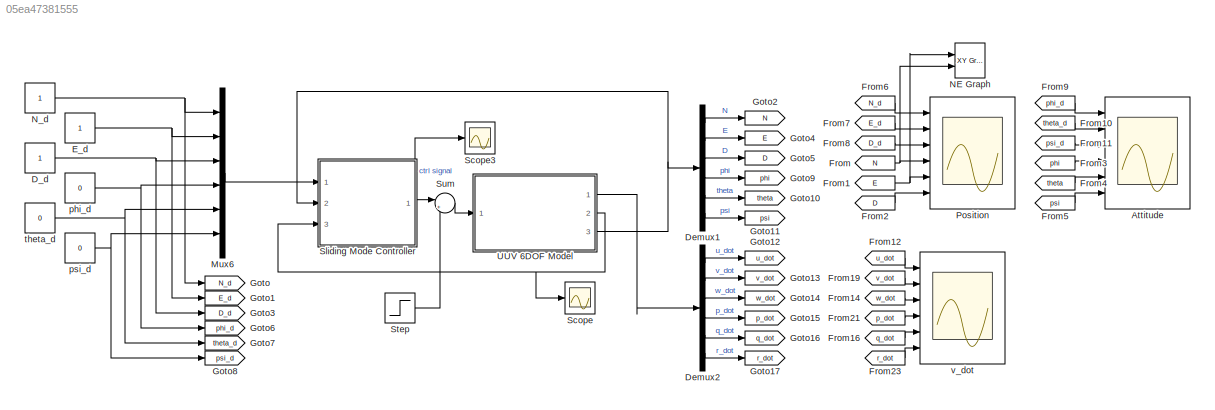
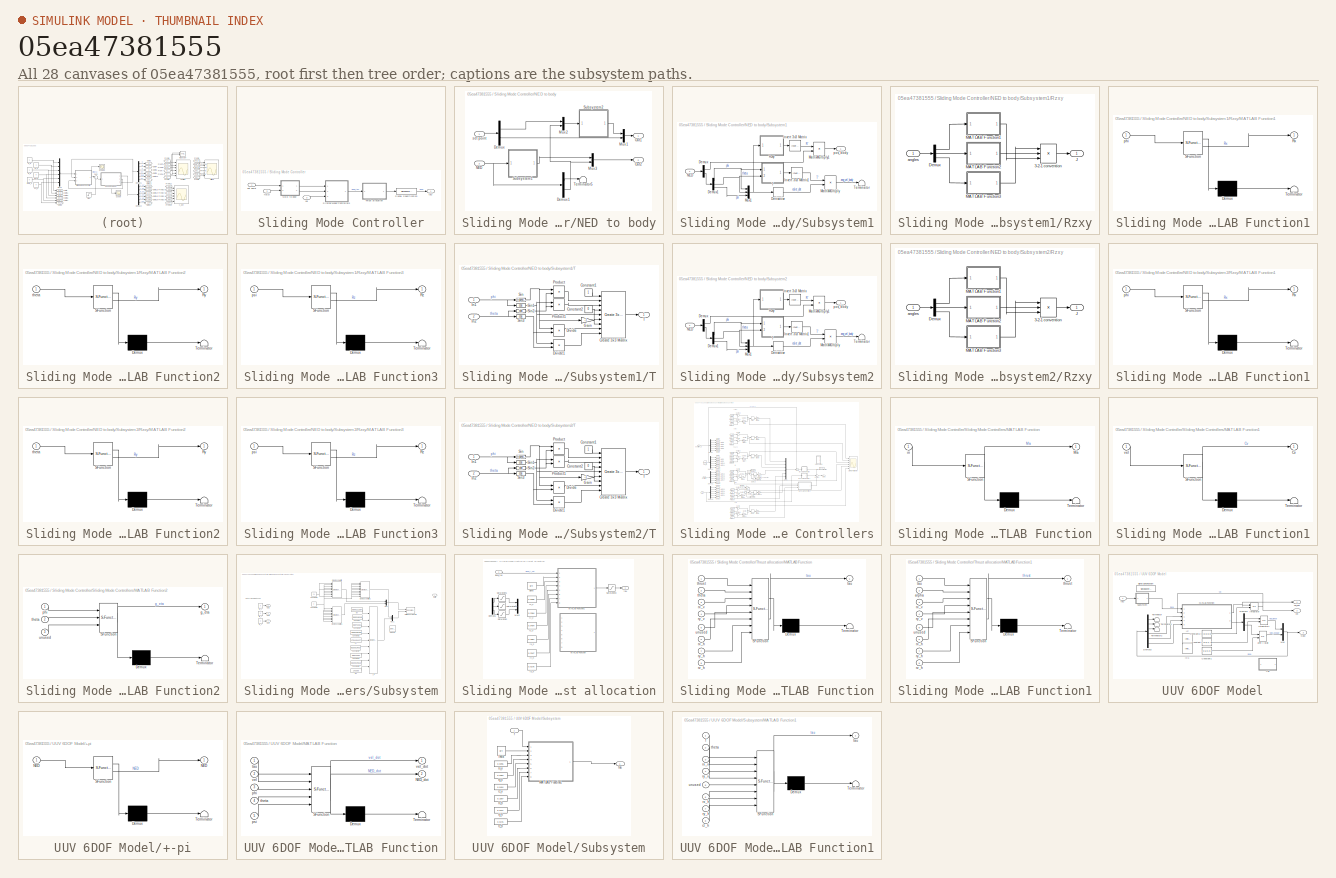
[diagram: thumbnail index - all 28 canvases of the model, root first then tree order]
MODEL slx_05ea47381555
KIND model
CONFIG AbsTol = auto
CONFIG EnableMultiTasking = off
CONFIG FixedStep = 0.01
CONFIG MaxStep = auto
CONFIG MinStep = auto
CONFIG RelTol = 1e-3
CONFIG SampleTimeConstraint = Unconstrained
CONFIG Solver = ode1
CONFIG SolverName = ode1
CONFIG StartTime = 0.0
CONFIG StopTime = 50
WORKSPACE source: mxarray member
WORKSPACE kd = 0
WORKSPACE kp = 0
BLOCK [Scope] Attitude
  Floating = off
  NumInputPorts = 6
  Ports = [6]
  ScopeSpecificationString = Simulink.scopes.TimeScopeBlockCfg('CurrentConfiguration', extmgr.ConfigurationSet(extmgr.Configuration('Core','General UI',true),extmgr.Configuration('Core','Source UI',true),extmgr.Configuration('Sources','WiredSimulink',true,'DataLoggingVariableName','ScopeData1'),extmgr.Configuration('Visuals','Time Domain',true,'SerializedDisplays',{struct('MinYLimReal','-0.82004','MaxYLimReal','1.20223','YLab...<+1621ch>
BLOCK [Constant] D_d
BLOCK [Demux] Demux1
  Outputs = 6
  Ports = [1, 6]
BLOCK [Demux] Demux2
  Outputs = 6
  Ports = [1, 6]
BLOCK [Constant] E_d
BLOCK [From] From
  GotoTag = N
BLOCK [From] From1
  GotoTag = E
BLOCK [From] From10
  GotoTag = theta_d
BLOCK [From] From11
  GotoTag = psi_d
BLOCK [From] From12
  GotoTag = u_dot
BLOCK [From] From14
  GotoTag = w_dot
BLOCK [From] From16
  GotoTag = q_dot
BLOCK [From] From19
  GotoTag = v_dot
BLOCK [From] From2
  GotoTag = D
BLOCK [From] From21
  GotoTag = p_dot
BLOCK [From] From23
  GotoTag = r_dot
BLOCK [From] From3
  GotoTag = phi
BLOCK [From] From4
  GotoTag = theta
BLOCK [From] From5
  GotoTag = psi
BLOCK [From] From6
  GotoTag = N_d
BLOCK [From] From7
  GotoTag = E_d
BLOCK [From] From8
  GotoTag = D_d
BLOCK [From] From9
  GotoTag = phi_d
BLOCK [Goto] Goto
  GotoTag = N_d
BLOCK [Goto] Goto1
  GotoTag = E_d
BLOCK [Goto] Goto10
  GotoTag = theta
BLOCK [Goto] Goto11
  GotoTag = psi
BLOCK [Goto] Goto12
  GotoTag = u_dot
BLOCK [Goto] Goto13
  GotoTag = v_dot
BLOCK [Goto] Goto14
  GotoTag = w_dot
BLOCK [Goto] Goto15
  GotoTag = p_dot
BLOCK [Goto] Goto16
  GotoTag = q_dot
BLOCK [Goto] Goto17
  GotoTag = r_dot
BLOCK [Goto] Goto2
  GotoTag = N
BLOCK [Goto] Goto3
  GotoTag = D_d
BLOCK [Goto] Goto4
  GotoTag = E
BLOCK [Goto] Goto5
  GotoTag = D
BLOCK [Goto] Goto6
  GotoTag = phi_d
BLOCK [Goto] Goto7
  GotoTag = theta_d
BLOCK [Goto] Goto8
  GotoTag = psi_d
BLOCK [Goto] Goto9
  GotoTag = phi
BLOCK [Mux] Mux6
  DisplayOption = bar
  Inputs = 6
  Ports = [6, 1]
BLOCK [Reference] NE Graph  REF=simulink/Sinks/XY Graph
  Ports = [2]
  SourceBlock = simulink/Sinks/XY Graph
  SourceProductBaseCode = SL
  SourceType = XY scope.
BLOCK [Constant] N_d
BLOCK [Scope] Position
  Floating = off
  NumInputPorts = 6
  Ports = [6]
  ScopeSpecificationString = Simulink.scopes.TimeScopeBlockCfg('CurrentConfiguration', extmgr.ConfigurationSet(extmgr.Configuration('Core','General UI',true),extmgr.Configuration('Core','Source UI',true),extmgr.Configuration('Sources','WiredSimulink',true),extmgr.Configuration('Visuals','Time Domain',true,'SerializedDisplays',{struct('MinYLimReal','-3.875','MaxYLimReal','4.875','YLabelReal','','MinYLimMag','0.00000','MaxYLimM...<+1556ch>
BLOCK [Scope] Scope
  Floating = off
  NumInputPorts = 1
  Ports = [1]
  ScopeSpecificationString = Simulink.scopes.TimeScopeBlockCfg('CurrentConfiguration', extmgr.ConfigurationSet(extmgr.Configuration('Core','General UI',true),extmgr.Configuration('Core','Source UI',true),extmgr.Configuration('Sources','WiredSimulink',true,'DataLoggingVariableName','ScopeData1'),extmgr.Configuration('Visuals','Time Domain',true,'SerializedDisplays',{struct('MinYLimReal','-1.15996','MaxYLimReal','0.79377','YLab...<+1780ch>
BLOCK [Scope] Scope3
  Floating = off
  NumInputPorts = 1
  Ports = [1]
  ScopeSpecificationString = Simulink.scopes.TimeScopeBlockCfg('CurrentConfiguration', extmgr.ConfigurationSet(extmgr.Configuration('Core','General UI',true),extmgr.Configuration('Core','Source UI',true),extmgr.Configuration('Sources','WiredSimulink',true,'DataLoggingVariableName','ScopeData1'),extmgr.Configuration('Visuals','Time Domain',true,'SerializedDisplays',{struct('MinYLimReal','-41.38209','MaxYLimReal','38.6759','YLa...<+1639ch>
BLOCK [SubSystem] Sliding Mode Controller
  Ports = [3, 1]
  RequestExecContextInheritance = off
BLOCK [Inport] Sliding Mode Controller/NED
  Port = 2
BLOCK [SubSystem] Sliding Mode Controller/NED to body
  Ports = [2, 2]
  RequestExecContextInheritance = off
BLOCK [Demux] Sliding Mode Controller/NED to body/Demux
  Outputs = 2
  Ports = [1, 2]
BLOCK [Demux] Sliding Mode Controller/NED to body/Demux1
  Outputs = 2
  Ports = [1, 2]
BLOCK [Mux] Sliding Mode Controller/NED to body/Mux1
  DisplayOption = bar
  Inputs = 2
  Ports = [2, 1]
BLOCK [Mux] Sliding Mode Controller/NED to body/Mux2
  DisplayOption = bar
  Inputs = 2
  Ports = [2, 1]
BLOCK [Mux] Sliding Mode Controller/NED to body/Mux3
  DisplayOption = bar
  Inputs = 2
  Ports = [2, 1]
BLOCK [Inport] Sliding Mode Controller/NED to body/NED
  Port = 2
BLOCK [Outport] Sliding Mode Controller/NED to body/Out1
BLOCK [Outport] Sliding Mode Controller/NED to body/Out2
  Port = 2
BLOCK [SubSystem] Sliding Mode Controller/NED to body/Subsystem1
  Ports = [1, 1]
  RequestExecContextInheritance = off
BLOCK [Demux] Sliding Mode Controller/NED to body/Subsystem1/Demux
  Outputs = 2
  Ports = [1, 2]
BLOCK [Demux] Sliding Mode Controller/NED to body/Subsystem1/Demux1
  Outputs = 3
  Ports = [1, 3]
BLOCK [Derivative] Sliding Mode Controller/NED to body/Subsystem1/Derivative
  Commented = on
BLOCK [Reference] Sliding Mode Controller/NED to body/Subsystem1/Invert 3x3 Matrix  REF=aerolibutil/Invert 
3x3 Matrix
  Ports = [1, 1]
  SourceBlock = aerolibutil/Invert \n3x3 Matrix
  SourceProductBaseCode = AE
  SourceType = Invert 3x3 Matrix
BLOCK [Reference] Sliding Mode Controller/NED to body/Subsystem1/Invert 3x3 Matrix1  REF=aerolibutil/Invert 
3x3 Matrix
  Commented = on
  Ports = [1, 1]
  SourceBlock = aerolibutil/Invert \n3x3 Matrix
  SourceProductBaseCode = AE
  SourceType = Invert 3x3 Matrix
BLOCK [Product] Sliding Mode Controller/NED to body/Subsystem1/MatrixMultiply
  Commented = on
  Multiplication = Matrix(*)
  Ports = [2, 1]
BLOCK [Product] Sliding Mode Controller/NED to body/Subsystem1/MatrixMultiply1
  Multiplication = Matrix(*)
  Ports = [2, 1]
BLOCK [Mux] Sliding Mode Controller/NED to body/Subsystem1/Mux1
  DisplayOption = bar
  Inputs = 3
  Ports = [3, 1]
BLOCK [Inport] Sliding Mode Controller/NED to body/Subsystem1/NED
BLOCK [SubSystem] Sliding Mode Controller/NED to body/Subsystem1/Rzxy
  Ports = [1, 1]
  RequestExecContextInheritance = off
BLOCK [Product] Sliding Mode Controller/NED to body/Subsystem1/Rzxy/3-2-1 convention
  Inputs = 3
  Multiplication = Matrix(*)
  Ports = [3, 1]
BLOCK [Demux] Sliding Mode Controller/NED to body/Subsystem1/Rzxy/Demux
  Outputs = 3
  Ports = [1, 3]
BLOCK [Outport] Sliding Mode Controller/NED to body/Subsystem1/Rzxy/J
BLOCK [SubSystem] Sliding Mode Controller/NED to body/Subsystem1/Rzxy/MATLAB Function1
  ErrorFcn = Stateflow.Translate.translate
  PermitHierarchicalResolution = ExplicitOnly
  Ports = [1, 1]
  RequestExecContextInheritance = off
  SFBlockType = MATLAB Function
  TreatAsAtomicUnit = on
BLOCK [Demux] Sliding Mode Controller/NED to body/Subsystem1/Rzxy/MATLAB Function1/ Demux 
  Outputs = 1
  Ports = [1, 1]
BLOCK [S-Function] Sliding Mode Controller/NED to body/Subsystem1/Rzxy/MATLAB Function1/ SFunction 
  EnableBusSupport = on
  FunctionName = sf_sfun
  PortCounts = [1 2]
  Ports = [1, 2]
  SFcnIsStateOwnerBlock = off
  SFunctionDeploymentMode = off
  Tag = Stateflow S-Function 8
BLOCK [Terminator] Sliding Mode Controller/NED to body/Subsystem1/Rzxy/MATLAB Function1/ Terminator 
BLOCK [Outport] Sliding Mode Controller/NED to body/Subsystem1/Rzxy/MATLAB Function1/Rx
BLOCK [Inport] Sliding Mode Controller/NED to body/Subsystem1/Rzxy/MATLAB Function1/phi
BLOCK [SubSystem] Sliding Mode Controller/NED to body/Subsystem1/Rzxy/MATLAB Function2
  ErrorFcn = Stateflow.Translate.translate
  PermitHierarchicalResolution = ExplicitOnly
  Ports = [1, 1]
  RequestExecContextInheritance = off
  SFBlockType = MATLAB Function
  TreatAsAtomicUnit = on
BLOCK [Demux] Sliding Mode Controller/NED to body/Subsystem1/Rzxy/MATLAB Function2/ Demux 
  Outputs = 1
  Ports = [1, 1]
BLOCK [S-Function] Sliding Mode Controller/NED to body/Subsystem1/Rzxy/MATLAB Function2/ SFunction 
  EnableBusSupport = on
  FunctionName = sf_sfun
  PortCounts = [1 2]
  Ports = [1, 2]
  SFcnIsStateOwnerBlock = off
  SFunctionDeploymentMode = off
  Tag = Stateflow S-Function 9
BLOCK [Terminator] Sliding Mode Controller/NED to body/Subsystem1/Rzxy/MATLAB Function2/ Terminator 
BLOCK [Outport] Sliding Mode Controller/NED to body/Subsystem1/Rzxy/MATLAB Function2/Ry
BLOCK [Inport] Sliding Mode Controller/NED to body/Subsystem1/Rzxy/MATLAB Function2/theta
BLOCK [SubSystem] Sliding Mode Controller/NED to body/Subsystem1/Rzxy/MATLAB Function3
  ErrorFcn = Stateflow.Translate.translate
  PermitHierarchicalResolution = ExplicitOnly
  Ports = [1, 1]
  RequestExecContextInheritance = off
  SFBlockType = MATLAB Function
  TreatAsAtomicUnit = on
BLOCK [Demux] Sliding Mode Controller/NED to body/Subsystem1/Rzxy/MATLAB Function3/ Demux 
  Outputs = 1
  Ports = [1, 1]
BLOCK [S-Function] Sliding Mode Controller/NED to body/Subsystem1/Rzxy/MATLAB Function3/ SFunction 
  EnableBusSupport = on
  FunctionName = sf_sfun
  PortCounts = [1 2]
  Ports = [1, 2]
  SFcnIsStateOwnerBlock = off
  SFunctionDeploymentMode = off
  Tag = Stateflow S-Function 10
BLOCK [Terminator] Sliding Mode Controller/NED to body/Subsystem1/Rzxy/MATLAB Function3/ Terminator 
BLOCK [Outport] Sliding Mode Controller/NED to body/Subsystem1/Rzxy/MATLAB Function3/Rz
BLOCK [Inport] Sliding Mode Controller/NED to body/Subsystem1/Rzxy/MATLAB Function3/psi
BLOCK [Inport] Sliding Mode Controller/NED to body/Subsystem1/Rzxy/angles
BLOCK [SubSystem] Sliding Mode Controller/NED to body/Subsystem1/T
  Commented = on
  Ports = [2, 1]
  RequestExecContextInheritance = off
BLOCK [Constant] Sliding Mode Controller/NED to body/Subsystem1/T/Constant1
BLOCK [Constant] Sliding Mode Controller/NED to body/Subsystem1/T/Constant2
  Value = 0
BLOCK [Reference] Sliding Mode Controller/NED to body/Subsystem1/T/Create 3x3 Matrix  REF=sharedutil/Create 3x3 Matrix
  Ports = [9, 1]
  SourceBlock = sharedutil/Create 3x3 Matrix
  SourceProductBaseCode = AE,PW,MT,VE,VP
  SourceType = Create 3x3 Matrix
BLOCK [Product] Sliding Mode Controller/NED to body/Subsystem1/T/Divide
  Inputs = */
  Ports = [2, 1]
BLOCK [Product] Sliding Mode Controller/NED to body/Subsystem1/T/Divide1
  Inputs = */
  Ports = [2, 1]
BLOCK [Gain] Sliding Mode Controller/NED to body/Subsystem1/T/Gain
  Gain = -1
BLOCK [Inport] Sliding Mode Controller/NED to body/Subsystem1/T/In1
BLOCK [Inport] Sliding Mode Controller/NED to body/Subsystem1/T/In2
  Port = 2
BLOCK [Product] Sliding Mode Controller/NED to body/Subsystem1/T/Product
  Ports = [2, 1]
BLOCK [Product] Sliding Mode Controller/NED to body/Subsystem1/T/Product1
  Ports = [2, 1]
BLOCK [Trigonometry] Sliding Mode Controller/NED to body/Subsystem1/T/Sin
  Ports = [1, 1]
BLOCK [Trigonometry] Sliding Mode Controller/NED to body/Subsystem1/T/Sin1
  Operator = cos
  Ports = [1, 1]
BLOCK [Trigonometry] Sliding Mode Controller/NED to body/Subsystem1/T/Sin2
  Operator = tan
  Ports = [1, 1]
BLOCK [Trigonometry] Sliding Mode Controller/NED to body/Subsystem1/T/Sin3
  Operator = cos
  Ports = [1, 1]
BLOCK [Outport] Sliding Mode Controller/NED to body/Subsystem1/T/T
BLOCK [Terminator] Sliding Mode Controller/NED to body/Subsystem1/Terminator
  Commented = on
BLOCK [Outport] Sliding Mode Controller/NED to body/Subsystem1/pos_body
BLOCK [SubSystem] Sliding Mode Controller/NED to body/Subsystem2
  Ports = [1, 1]
  RequestExecContextInheritance = off
BLOCK [Demux] Sliding Mode Controller/NED to body/Subsystem2/Demux
  Outputs = 2
  Ports = [1, 2]
BLOCK [Demux] Sliding Mode Controller/NED to body/Subsystem2/Demux1
  Outputs = 3
  Ports = [1, 3]
BLOCK [Derivative] Sliding Mode Controller/NED to body/Subsystem2/Derivative
  Commented = on
BLOCK [Reference] Sliding Mode Controller/NED to body/Subsystem2/Invert 3x3 Matrix  REF=aerolibutil/Invert 
3x3 Matrix
  Ports = [1, 1]
  SourceBlock = aerolibutil/Invert \n3x3 Matrix
  SourceProductBaseCode = AE
  SourceType = Invert 3x3 Matrix
BLOCK [Reference] Sliding Mode Controller/NED to body/Subsystem2/Invert 3x3 Matrix1  REF=aerolibutil/Invert 
3x3 Matrix
  Commented = on
  Ports = [1, 1]
  SourceBlock = aerolibutil/Invert \n3x3 Matrix
  SourceProductBaseCode = AE
  SourceType = Invert 3x3 Matrix
BLOCK [Product] Sliding Mode Controller/NED to body/Subsystem2/MatrixMultiply
  Commented = on
  Multiplication = Matrix(*)
  Ports = [2, 1]
BLOCK [Product] Sliding Mode Controller/NED to body/Subsystem2/MatrixMultiply1
  Multiplication = Matrix(*)
  Ports = [2, 1]
BLOCK [Mux] Sliding Mode Controller/NED to body/Subsystem2/Mux1
  DisplayOption = bar
  Inputs = 3
  Ports = [3, 1]
BLOCK [Inport] Sliding Mode Controller/NED to body/Subsystem2/NED
BLOCK [SubSystem] Sliding Mode Controller/NED to body/Subsystem2/Rzxy
  Ports = [1, 1]
  RequestExecContextInheritance = off
BLOCK [Product] Sliding Mode Controller/NED to body/Subsystem2/Rzxy/3-2-1 convention
  Inputs = 3
  Multiplication = Matrix(*)
  Ports = [3, 1]
BLOCK [Demux] Sliding Mode Controller/NED to body/Subsystem2/Rzxy/Demux
  Outputs = 3
  Ports = [1, 3]
BLOCK [Outport] Sliding Mode Controller/NED to body/Subsystem2/Rzxy/J
BLOCK [SubSystem] Sliding Mode Controller/NED to body/Subsystem2/Rzxy/MATLAB Function1
  ErrorFcn = Stateflow.Translate.translate
  PermitHierarchicalResolution = ExplicitOnly
  Ports = [1, 1]
  RequestExecContextInheritance = off
  SFBlockType = MATLAB Function
  TreatAsAtomicUnit = on
BLOCK [Demux] Sliding Mode Controller/NED to body/Subsystem2/Rzxy/MATLAB Function1/ Demux 
  Outputs = 1
  Ports = [1, 1]
BLOCK [S-Function] Sliding Mode Controller/NED to body/Subsystem2/Rzxy/MATLAB Function1/ SFunction 
  EnableBusSupport = on
  FunctionName = sf_sfun
  PortCounts = [1 2]
  Ports = [1, 2]
  SFcnIsStateOwnerBlock = off
  SFunctionDeploymentMode = off
  Tag = Stateflow S-Function 1
BLOCK [Terminator] Sliding Mode Controller/NED to body/Subsystem2/Rzxy/MATLAB Function1/ Terminator 
BLOCK [Outport] Sliding Mode Controller/NED to body/Subsystem2/Rzxy/MATLAB Function1/Rx
BLOCK [Inport] Sliding Mode Controller/NED to body/Subsystem2/Rzxy/MATLAB Function1/phi
BLOCK [SubSystem] Sliding Mode Controller/NED to body/Subsystem2/Rzxy/MATLAB Function2
  ErrorFcn = Stateflow.Translate.translate
  PermitHierarchicalResolution = ExplicitOnly
  Ports = [1, 1]
  RequestExecContextInheritance = off
  SFBlockType = MATLAB Function
  TreatAsAtomicUnit = on
BLOCK [Demux] Sliding Mode Controller/NED to body/Subsystem2/Rzxy/MATLAB Function2/ Demux 
  Outputs = 1
  Ports = [1, 1]
BLOCK [S-Function] Sliding Mode Controller/NED to body/Subsystem2/Rzxy/MATLAB Function2/ SFunction 
  EnableBusSupport = on
  FunctionName = sf_sfun
  PortCounts = [1 2]
  Ports = [1, 2]
  SFcnIsStateOwnerBlock = off
  SFunctionDeploymentMode = off
  Tag = Stateflow S-Function 6
BLOCK [Terminator] Sliding Mode Controller/NED to body/Subsystem2/Rzxy/MATLAB Function2/ Terminator 
BLOCK [Outport] Sliding Mode Controller/NED to body/Subsystem2/Rzxy/MATLAB Function2/Ry
BLOCK [Inport] Sliding Mode Controller/NED to body/Subsystem2/Rzxy/MATLAB Function2/theta
BLOCK [SubSystem] Sliding Mode Controller/NED to body/Subsystem2/Rzxy/MATLAB Function3
  ErrorFcn = Stateflow.Translate.translate
  PermitHierarchicalResolution = ExplicitOnly
  Ports = [1, 1]
  RequestExecContextInheritance = off
  SFBlockType = MATLAB Function
  TreatAsAtomicUnit = on
BLOCK [Demux] Sliding Mode Controller/NED to body/Subsystem2/Rzxy/MATLAB Function3/ Demux 
  Outputs = 1
  Ports = [1, 1]
BLOCK [S-Function] Sliding Mode Controller/NED to body/Subsystem2/Rzxy/MATLAB Function3/ SFunction 
  EnableBusSupport = on
  FunctionName = sf_sfun
  PortCounts = [1 2]
  Ports = [1, 2]
  SFcnIsStateOwnerBlock = off
  SFunctionDeploymentMode = off
  Tag = Stateflow S-Function 7
BLOCK [Terminator] Sliding Mode Controller/NED to body/Subsystem2/Rzxy/MATLAB Function3/ Terminator 
BLOCK [Outport] Sliding Mode Controller/NED to body/Subsystem2/Rzxy/MATLAB Function3/Rz
BLOCK [Inport] Sliding Mode Controller/NED to body/Subsystem2/Rzxy/MATLAB Function3/psi
BLOCK [Inport] Sliding Mode Controller/NED to body/Subsystem2/Rzxy/angles
BLOCK [SubSystem] Sliding Mode Controller/NED to body/Subsystem2/T
  Commented = on
  Ports = [2, 1]
  RequestExecContextInheritance = off
BLOCK [Constant] Sliding Mode Controller/NED to body/Subsystem2/T/Constant1
BLOCK [Constant] Sliding Mode Controller/NED to body/Subsystem2/T/Constant2
  Value = 0
BLOCK [Reference] Sliding Mode Controller/NED to body/Subsystem2/T/Create 3x3 Matrix  REF=sharedutil/Create 3x3 Matrix
  Ports = [9, 1]
  SourceBlock = sharedutil/Create 3x3 Matrix
  SourceProductBaseCode = AE,PW,MT,VE,VP
  SourceType = Create 3x3 Matrix
BLOCK [Product] Sliding Mode Controller/NED to body/Subsystem2/T/Divide
  Inputs = */
  Ports = [2, 1]
BLOCK [Product] Sliding Mode Controller/NED to body/Subsystem2/T/Divide1
  Inputs = */
  Ports = [2, 1]
BLOCK [Gain] Sliding Mode Controller/NED to body/Subsystem2/T/Gain
  Gain = -1
BLOCK [Inport] Sliding Mode Controller/NED to body/Subsystem2/T/In1
BLOCK [Inport] Sliding Mode Controller/NED to body/Subsystem2/T/In2
  Port = 2
BLOCK [Product] Sliding Mode Controller/NED to body/Subsystem2/T/Product
  Ports = [2, 1]
BLOCK [Product] Sliding Mode Controller/NED to body/Subsystem2/T/Product1
  Ports = [2, 1]
BLOCK [Trigonometry] Sliding Mode Controller/NED to body/Subsystem2/T/Sin
  Ports = [1, 1]
BLOCK [Trigonometry] Sliding Mode Controller/NED to body/Subsystem2/T/Sin1
  Operator = cos
  Ports = [1, 1]
BLOCK [Trigonometry] Sliding Mode Controller/NED to body/Subsystem2/T/Sin2
  Operator = tan
  Ports = [1, 1]
BLOCK [Trigonometry] Sliding Mode Controller/NED to body/Subsystem2/T/Sin3
  Operator = cos
  Ports = [1, 1]
BLOCK [Outport] Sliding Mode Controller/NED to body/Subsystem2/T/T
BLOCK [Terminator] Sliding Mode Controller/NED to body/Subsystem2/Terminator
  Commented = on
BLOCK [Outport] Sliding Mode Controller/NED to body/Subsystem2/pos_body
BLOCK [Terminator] Sliding Mode Controller/NED to body/Terminator5
BLOCK [Inport] Sliding Mode Controller/NED to body/set point
BLOCK [SignalSpecification] Sliding Mode Controller/Signal Specification
  Dimensions = 6
  VarSizeSig = No
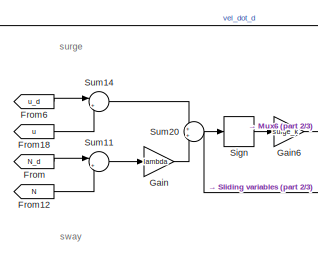
[diagram: Sliding Mode Controller/Sliding Mode Controllers - part 1/3, top left region]
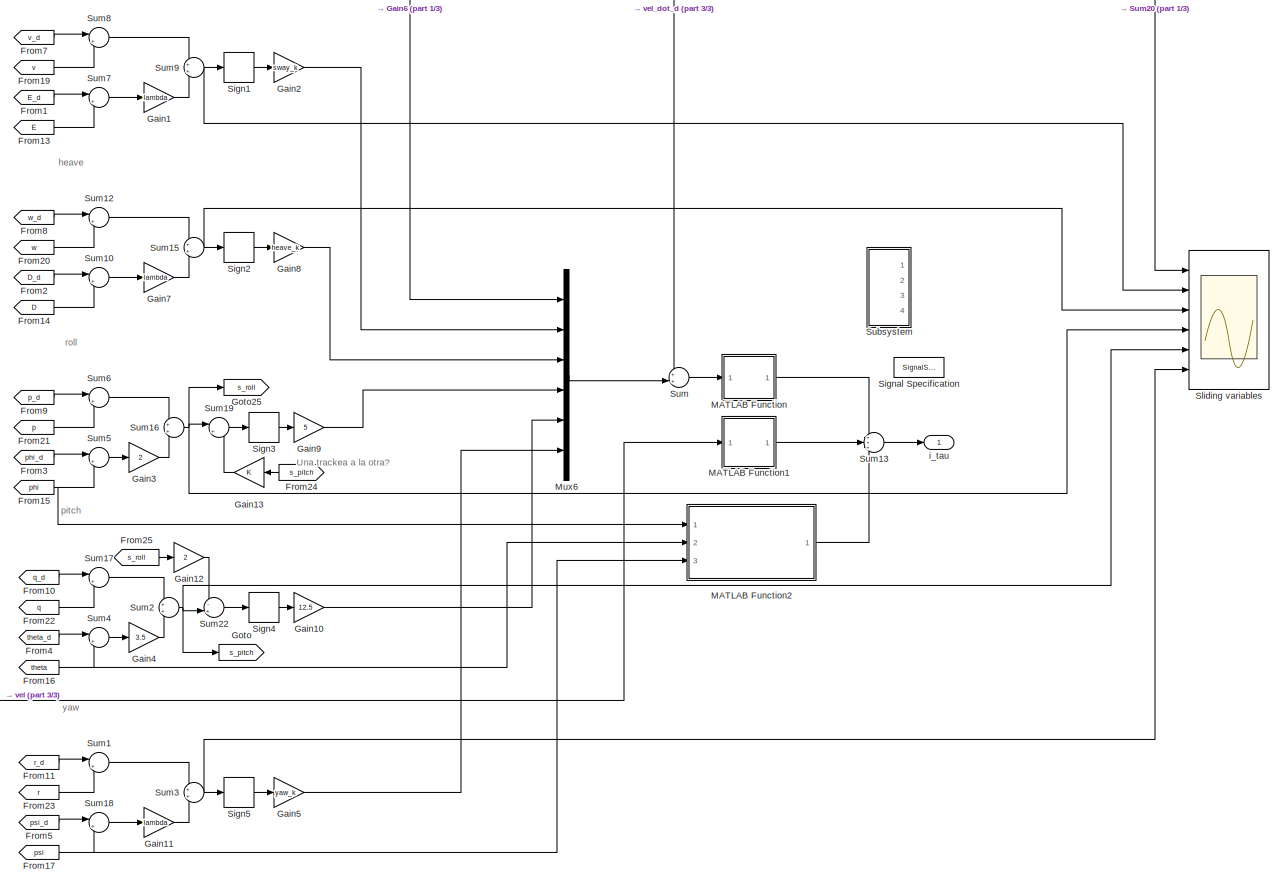
[diagram: Sliding Mode Controller/Sliding Mode Controllers - part 2/3, most of the canvas]
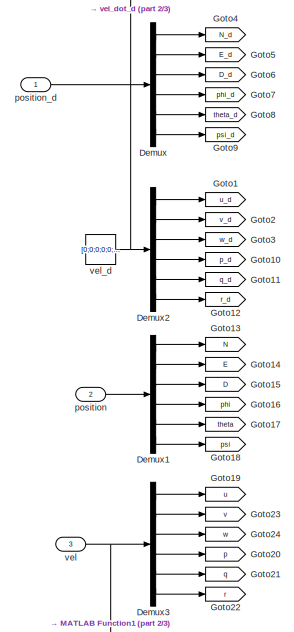
[diagram: Sliding Mode Controller/Sliding Mode Controllers - part 3/3, middle left region]
BLOCK [SubSystem] Sliding Mode Controller/Sliding Mode Controllers
  Ports = [3, 1]
  RequestExecContextInheritance = off
BLOCK [Demux] Sliding Mode Controller/Sliding Mode Controllers/Demux
  Outputs = 6
  Ports = [1, 6]
BLOCK [Demux] Sliding Mode Controller/Sliding Mode Controllers/Demux1
  Outputs = 6
  Ports = [1, 6]
BLOCK [Demux] Sliding Mode Controller/Sliding Mode Controllers/Demux2
  Outputs = 6
  Ports = [1, 6]
BLOCK [Demux] Sliding Mode Controller/Sliding Mode Controllers/Demux3
  Outputs = 6
  Ports = [1, 6]
BLOCK [From] Sliding Mode Controller/Sliding Mode Controllers/From
  GotoTag = N_d
BLOCK [From] Sliding Mode Controller/Sliding Mode Controllers/From1
  GotoTag = E_d
BLOCK [From] Sliding Mode Controller/Sliding Mode Controllers/From10
  GotoTag = q_d
BLOCK [From] Sliding Mode Controller/Sliding Mode Controllers/From11
  GotoTag = r_d
BLOCK [From] Sliding Mode Controller/Sliding Mode Controllers/From12
  GotoTag = N
BLOCK [From] Sliding Mode Controller/Sliding Mode Controllers/From13
  GotoTag = E
BLOCK [From] Sliding Mode Controller/Sliding Mode Controllers/From14
  GotoTag = D
BLOCK [From] Sliding Mode Controller/Sliding Mode Controllers/From15
  GotoTag = phi
BLOCK [From] Sliding Mode Controller/Sliding Mode Controllers/From16
  GotoTag = theta
BLOCK [From] Sliding Mode Controller/Sliding Mode Controllers/From17
  GotoTag = psi
BLOCK [From] Sliding Mode Controller/Sliding Mode Controllers/From18
  GotoTag = u
BLOCK [From] Sliding Mode Controller/Sliding Mode Controllers/From19
  GotoTag = v
BLOCK [From] Sliding Mode Controller/Sliding Mode Controllers/From2
  GotoTag = D_d
BLOCK [From] Sliding Mode Controller/Sliding Mode Controllers/From20
  GotoTag = w
BLOCK [From] Sliding Mode Controller/Sliding Mode Controllers/From21
  GotoTag = p
BLOCK [From] Sliding Mode Controller/Sliding Mode Controllers/From22
  GotoTag = q
BLOCK [From] Sliding Mode Controller/Sliding Mode Controllers/From23
  GotoTag = r
BLOCK [From] Sliding Mode Controller/Sliding Mode Controllers/From24
  GotoTag = s_pitch
  NameLocation = top
BLOCK [From] Sliding Mode Controller/Sliding Mode Controllers/From25
  GotoTag = s_roll
BLOCK [From] Sliding Mode Controller/Sliding Mode Controllers/From3
  GotoTag = phi_d
BLOCK [From] Sliding Mode Controller/Sliding Mode Controllers/From4
  GotoTag = theta_d
BLOCK [From] Sliding Mode Controller/Sliding Mode Controllers/From5
  GotoTag = psi_d
BLOCK [From] Sliding Mode Controller/Sliding Mode Controllers/From6
  GotoTag = u_d
BLOCK [From] Sliding Mode Controller/Sliding Mode Controllers/From7
  GotoTag = v_d
BLOCK [From] Sliding Mode Controller/Sliding Mode Controllers/From8
  GotoTag = w_d
BLOCK [From] Sliding Mode Controller/Sliding Mode Controllers/From9
  GotoTag = p_d
BLOCK [Gain] Sliding Mode Controller/Sliding Mode Controllers/Gain
  Gain = lambda
BLOCK [Gain] Sliding Mode Controller/Sliding Mode Controllers/Gain1
  Gain = lambda
BLOCK [Gain] Sliding Mode Controller/Sliding Mode Controllers/Gain10
  Gain = 12.5
BLOCK [Gain] Sliding Mode Controller/Sliding Mode Controllers/Gain11
  Gain = lambda
BLOCK [Gain] Sliding Mode Controller/Sliding Mode Controllers/Gain12
  Gain = 2
BLOCK [Gain] Sliding Mode Controller/Sliding Mode Controllers/Gain13
  NameLocation = top
BLOCK [Gain] Sliding Mode Controller/Sliding Mode Controllers/Gain2
  Gain = sway_k
BLOCK [Gain] Sliding Mode Controller/Sliding Mode Controllers/Gain3
  Gain = 2
BLOCK [Gain] Sliding Mode Controller/Sliding Mode Controllers/Gain4
  Gain = 3.5
BLOCK [Gain] Sliding Mode Controller/Sliding Mode Controllers/Gain5
  Gain = yaw_k
BLOCK [Gain] Sliding Mode Controller/Sliding Mode Controllers/Gain6
  Gain = surge_k
BLOCK [Gain] Sliding Mode Controller/Sliding Mode Controllers/Gain7
  Gain = lambda
BLOCK [Gain] Sliding Mode Controller/Sliding Mode Controllers/Gain8
  Gain = heave_k
BLOCK [Gain] Sliding Mode Controller/Sliding Mode Controllers/Gain9
  Gain = 5
BLOCK [Goto] Sliding Mode Controller/Sliding Mode Controllers/Goto
  GotoTag = s_pitch
BLOCK [Goto] Sliding Mode Controller/Sliding Mode Controllers/Goto1
  GotoTag = u_d
BLOCK [Goto] Sliding Mode Controller/Sliding Mode Controllers/Goto10
  GotoTag = p_d
BLOCK [Goto] Sliding Mode Controller/Sliding Mode Controllers/Goto11
  GotoTag = q_d
BLOCK [Goto] Sliding Mode Controller/Sliding Mode Controllers/Goto12
  GotoTag = r_d
BLOCK [Goto] Sliding Mode Controller/Sliding Mode Controllers/Goto13
  GotoTag = N
BLOCK [Goto] Sliding Mode Controller/Sliding Mode Controllers/Goto14
  GotoTag = E
BLOCK [Goto] Sliding Mode Controller/Sliding Mode Controllers/Goto15
  GotoTag = D
BLOCK [Goto] Sliding Mode Controller/Sliding Mode Controllers/Goto16
  GotoTag = phi
BLOCK [Goto] Sliding Mode Controller/Sliding Mode Controllers/Goto17
  GotoTag = theta
BLOCK [Goto] Sliding Mode Controller/Sliding Mode Controllers/Goto18
  GotoTag = psi
BLOCK [Goto] Sliding Mode Controller/Sliding Mode Controllers/Goto19
  GotoTag = u
BLOCK [Goto] Sliding Mode Controller/Sliding Mode Controllers/Goto2
  GotoTag = v_d
BLOCK [Goto] Sliding Mode Controller/Sliding Mode Controllers/Goto20
  GotoTag = p
BLOCK [Goto] Sliding Mode Controller/Sliding Mode Controllers/Goto21
  GotoTag = q
BLOCK [Goto] Sliding Mode Controller/Sliding Mode Controllers/Goto22
  GotoTag = r
BLOCK [Goto] Sliding Mode Controller/Sliding Mode Controllers/Goto23
  GotoTag = v
BLOCK [Goto] Sliding Mode Controller/Sliding Mode Controllers/Goto24
  GotoTag = w
BLOCK [Goto] Sliding Mode Controller/Sliding Mode Controllers/Goto25
  GotoTag = s_roll
BLOCK [Goto] Sliding Mode Controller/Sliding Mode Controllers/Goto3
  GotoTag = w_d
BLOCK [Goto] Sliding Mode Controller/Sliding Mode Controllers/Goto4
  GotoTag = N_d
BLOCK [Goto] Sliding Mode Controller/Sliding Mode Controllers/Goto5
  GotoTag = E_d
BLOCK [Goto] Sliding Mode Controller/Sliding Mode Controllers/Goto6
  GotoTag = D_d
BLOCK [Goto] Sliding Mode Controller/Sliding Mode Controllers/Goto7
  GotoTag = phi_d
BLOCK [Goto] Sliding Mode Controller/Sliding Mode Controllers/Goto8
  GotoTag = theta_d
BLOCK [Goto] Sliding Mode Controller/Sliding Mode Controllers/Goto9
  GotoTag = psi_d
BLOCK [SubSystem] Sliding Mode Controller/Sliding Mode Controllers/MATLAB Function
  ErrorFcn = Stateflow.Translate.translate
  PermitHierarchicalResolution = ExplicitOnly
  Ports = [1, 1]
  RequestExecContextInheritance = off
  SFBlockType = MATLAB Function
  TreatAsAtomicUnit = on
BLOCK [Demux] Sliding Mode Controller/Sliding Mode Controllers/MATLAB Function/ Demux 
  Outputs = 1
  Ports = [1, 1]
BLOCK [S-Function] Sliding Mode Controller/Sliding Mode Controllers/MATLAB Function/ SFunction 
  EnableBusSupport = on
  FunctionName = sf_sfun
  PortCounts = [1 2]
  Ports = [1, 2]
  SFcnIsStateOwnerBlock = off
  SFunctionDeploymentMode = off
  Tag = Stateflow S-Function 15
BLOCK [Terminator] Sliding Mode Controller/Sliding Mode Controllers/MATLAB Function/ Terminator 
BLOCK [Outport] Sliding Mode Controller/Sliding Mode Controllers/MATLAB Function/Ma
BLOCK [Inport] Sliding Mode Controller/Sliding Mode Controllers/MATLAB Function/in
BLOCK [SubSystem] Sliding Mode Controller/Sliding Mode Controllers/MATLAB Function1
  ErrorFcn = Stateflow.Translate.translate
  PermitHierarchicalResolution = ExplicitOnly
  Ports = [1, 1]
  RequestExecContextInheritance = off
  SFBlockType = MATLAB Function
  TreatAsAtomicUnit = on
BLOCK [Demux] Sliding Mode Controller/Sliding Mode Controllers/MATLAB Function1/ Demux 
  Outputs = 1
  Ports = [1, 1]
BLOCK [S-Function] Sliding Mode Controller/Sliding Mode Controllers/MATLAB Function1/ SFunction 
  EnableBusSupport = on
  FunctionName = sf_sfun
  PortCounts = [1 2]
  Ports = [1, 2]
  SFcnIsStateOwnerBlock = off
  SFunctionDeploymentMode = off
  Tag = Stateflow S-Function 16
BLOCK [Terminator] Sliding Mode Controller/Sliding Mode Controllers/MATLAB Function1/ Terminator 
BLOCK [Outport] Sliding Mode Controller/Sliding Mode Controllers/MATLAB Function1/Cv
BLOCK [Inport] Sliding Mode Controller/Sliding Mode Controllers/MATLAB Function1/vel
BLOCK [SubSystem] Sliding Mode Controller/Sliding Mode Controllers/MATLAB Function2
  ErrorFcn = Stateflow.Translate.translate
  PermitHierarchicalResolution = ExplicitOnly
  Ports = [3, 1]
  RequestExecContextInheritance = off
  SFBlockType = MATLAB Function
  TreatAsAtomicUnit = on
BLOCK [Demux] Sliding Mode Controller/Sliding Mode Controllers/MATLAB Function2/ Demux 
  Outputs = 1
  Ports = [1, 1]
BLOCK [S-Function] Sliding Mode Controller/Sliding Mode Controllers/MATLAB Function2/ SFunction 
  EnableBusSupport = on
  FunctionName = sf_sfun
  PortCounts = [3 2]
  Ports = [3, 2]
  SFcnIsStateOwnerBlock = off
  SFunctionDeploymentMode = off
  Tag = Stateflow S-Function 17
BLOCK [Terminator] Sliding Mode Controller/Sliding Mode Controllers/MATLAB Function2/ Terminator 
BLOCK [Outport] Sliding Mode Controller/Sliding Mode Controllers/MATLAB Function2/g_eta
BLOCK [Inport] Sliding Mode Controller/Sliding Mode Controllers/MATLAB Function2/phi
BLOCK [Inport] Sliding Mode Controller/Sliding Mode Controllers/MATLAB Function2/theta
  Port = 2
BLOCK [Inport] Sliding Mode Controller/Sliding Mode Controllers/MATLAB Function2/unused
  Port = 3
BLOCK [Mux] Sliding Mode Controller/Sliding Mode Controllers/Mux6
  DisplayOption = bar
  Inputs = 6
  Ports = [6, 1]
BLOCK [Signum] Sliding Mode Controller/Sliding Mode Controllers/Sign
  ZeroCross = off
BLOCK [Signum] Sliding Mode Controller/Sliding Mode Controllers/Sign1
  ZeroCross = off
BLOCK [Signum] Sliding Mode Controller/Sliding Mode Controllers/Sign2
  ZeroCross = off
BLOCK [Signum] Sliding Mode Controller/Sliding Mode Controllers/Sign3
  ZeroCross = off
BLOCK [Signum] Sliding Mode Controller/Sliding Mode Controllers/Sign4
  ZeroCross = off
BLOCK [Signum] Sliding Mode Controller/Sliding Mode Controllers/Sign5
  ZeroCross = off
BLOCK [SignalSpecification] Sliding Mode Controller/Sliding Mode Controllers/Signal Specification
  Commented = on
  Dimensions = 6
  VarSizeSig = No
BLOCK [Scope] Sliding Mode Controller/Sliding Mode Controllers/Sliding variables
  Floating = off
  NumInputPorts = 6
  Ports = [6]
  ScopeSpecificationString = Simulink.scopes.TimeScopeBlockCfg('CurrentConfiguration', extmgr.ConfigurationSet(extmgr.Configuration('Core','General UI',true),extmgr.Configuration('Core','Source UI',true),extmgr.Configuration('Sources','WiredSimulink',true,'DataLoggingVariableName','ScopeData1'),extmgr.Configuration('Visuals','Time Domain',true,'SerializedDisplays',{struct('MinYLimReal','-3.82038','MaxYLimReal','5.4509','YLabe...<+1613ch>
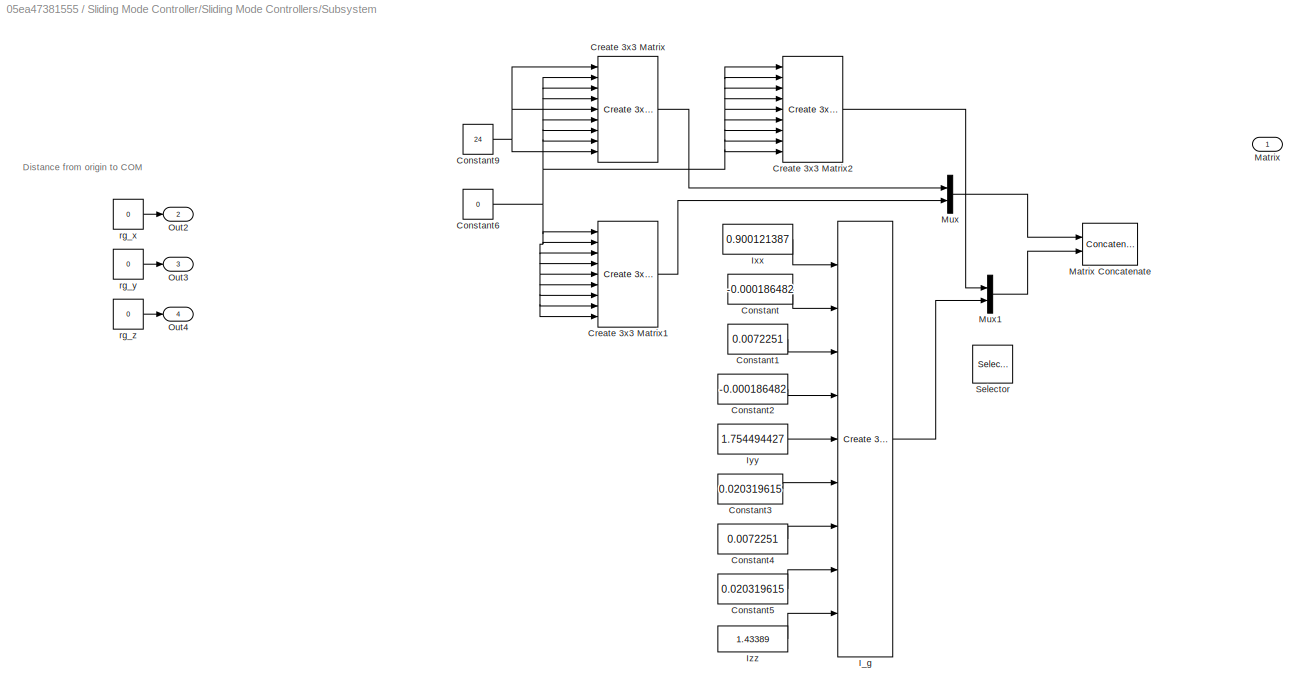
BLOCK [SubSystem] Sliding Mode Controller/Sliding Mode Controllers/Subsystem
  Commented = on
  Ports = [0, 4]
  RequestExecContextInheritance = off
BLOCK [Constant] Sliding Mode Controller/Sliding Mode Controllers/Subsystem/Constant
  Value = -0.000186482
BLOCK [Constant] Sliding Mode Controller/Sliding Mode Controllers/Subsystem/Constant1
  Value = 0.0072251
BLOCK [Constant] Sliding Mode Controller/Sliding Mode Controllers/Subsystem/Constant2
  Value = -0.000186482
BLOCK [Constant] Sliding Mode Controller/Sliding Mode Controllers/Subsystem/Constant3
  Value = 0.020319615
BLOCK [Constant] Sliding Mode Controller/Sliding Mode Controllers/Subsystem/Constant4
  Value = 0.0072251
BLOCK [Constant] Sliding Mode Controller/Sliding Mode Controllers/Subsystem/Constant5
  Value = 0.020319615
BLOCK [Constant] Sliding Mode Controller/Sliding Mode Controllers/Subsystem/Constant6
  Value = 0
BLOCK [Constant] Sliding Mode Controller/Sliding Mode Controllers/Subsystem/Constant9
  Value = 24
BLOCK [Reference] Sliding Mode Controller/Sliding Mode Controllers/Subsystem/Create 3x3 Matrix  REF=sharedutil/Create 3x3 Matrix
  Ports = [9, 1]
  SourceBlock = sharedutil/Create 3x3 Matrix
  SourceProductBaseCode = AE,PW,MT,VE,VP
  SourceType = Create 3x3 Matrix
BLOCK [Reference] Sliding Mode Controller/Sliding Mode Controllers/Subsystem/Create 3x3 Matrix1  REF=sharedutil/Create 3x3 Matrix
  Ports = [9, 1]
  SourceBlock = sharedutil/Create 3x3 Matrix
  SourceProductBaseCode = AE,PW,MT,VE,VP
  SourceType = Create 3x3 Matrix
BLOCK [Reference] Sliding Mode Controller/Sliding Mode Controllers/Subsystem/Create 3x3 Matrix2  REF=sharedutil/Create 3x3 Matrix
  Ports = [9, 1]
  SourceBlock = sharedutil/Create 3x3 Matrix
  SourceProductBaseCode = AE,PW,MT,VE,VP
  SourceType = Create 3x3 Matrix
BLOCK [Reference] Sliding Mode Controller/Sliding Mode Controllers/Subsystem/I_g  REF=sharedutil/Create 3x3 Matrix
  Ports = [9, 1]
  SourceBlock = sharedutil/Create 3x3 Matrix
  SourceProductBaseCode = AE,PW,MT,VE,VP
  SourceType = Create 3x3 Matrix
BLOCK [Constant] Sliding Mode Controller/Sliding Mode Controllers/Subsystem/Ixx
  Value = 0.900121387
BLOCK [Constant] Sliding Mode Controller/Sliding Mode Controllers/Subsystem/Iyy
  Value = 1.754494427
BLOCK [Constant] Sliding Mode Controller/Sliding Mode Controllers/Subsystem/Izz
  Value = 1.43389
BLOCK [Outport] Sliding Mode Controller/Sliding Mode Controllers/Subsystem/Matrix
BLOCK [Concatenate] Sliding Mode Controller/Sliding Mode Controllers/Subsystem/Matrix Concatenate
  ConcatenateDimension = 2
  Mode = Multidimensional array
  Ports = [2, 1]
BLOCK [Mux] Sliding Mode Controller/Sliding Mode Controllers/Subsystem/Mux
  DisplayOption = bar
  Inputs = 2
  Ports = [2, 1]
BLOCK [Mux] Sliding Mode Controller/Sliding Mode Controllers/Subsystem/Mux1
  DisplayOption = bar
  Inputs = 2
  Ports = [2, 1]
BLOCK [Outport] Sliding Mode Controller/Sliding Mode Controllers/Subsystem/Out2
  Port = 2
BLOCK [Outport] Sliding Mode Controller/Sliding Mode Controllers/Subsystem/Out3
  Port = 3
BLOCK [Outport] Sliding Mode Controller/Sliding Mode Controllers/Subsystem/Out4
  Port = 4
BLOCK [Selector] Sliding Mode Controller/Sliding Mode Controllers/Subsystem/Selector
  IndexOptions = Index vector (dialog)
  Indices = [1 3]
  InputPortWidth = 3
  OutputSizes = 1
  Ports = [1, 1]
BLOCK [Constant] Sliding Mode Controller/Sliding Mode Controllers/Subsystem/rg_x
  Value = 0
BLOCK [Constant] Sliding Mode Controller/Sliding Mode Controllers/Subsystem/rg_y
  Value = 0
BLOCK [Constant] Sliding Mode Controller/Sliding Mode Controllers/Subsystem/rg_z
  Value = 0
BLOCK [Sum] Sliding Mode Controller/Sliding Mode Controllers/Sum
  Inputs = ++|
  Ports = [2, 1]
BLOCK [Sum] Sliding Mode Controller/Sliding Mode Controllers/Sum1
  Inputs = |+-
  Ports = [2, 1]
BLOCK [Sum] Sliding Mode Controller/Sliding Mode Controllers/Sum10
  Inputs = |+-
  Ports = [2, 1]
BLOCK [Sum] Sliding Mode Controller/Sliding Mode Controllers/Sum11
  Inputs = |+-
  Ports = [2, 1]
BLOCK [Sum] Sliding Mode Controller/Sliding Mode Controllers/Sum12
  Inputs = |+-
  Ports = [2, 1]
BLOCK [Sum] Sliding Mode Controller/Sliding Mode Controllers/Sum13
  Inputs = +++
  Ports = [3, 1]
BLOCK [Sum] Sliding Mode Controller/Sliding Mode Controllers/Sum14
  Inputs = |+-
  Ports = [2, 1]
BLOCK [Sum] Sliding Mode Controller/Sliding Mode Controllers/Sum15
  Ports = [2, 1]
BLOCK [Sum] Sliding Mode Controller/Sliding Mode Controllers/Sum16
  Ports = [2, 1]
BLOCK [Sum] Sliding Mode Controller/Sliding Mode Controllers/Sum17
  Inputs = |+-
  Ports = [2, 1]
BLOCK [Sum] Sliding Mode Controller/Sliding Mode Controllers/Sum18
  Inputs = |+-
  Ports = [2, 1]
BLOCK [Sum] Sliding Mode Controller/Sliding Mode Controllers/Sum19
  Inputs = |+-
  Ports = [2, 1]
BLOCK [Sum] Sliding Mode Controller/Sliding Mode Controllers/Sum2
  Ports = [2, 1]
BLOCK [Sum] Sliding Mode Controller/Sliding Mode Controllers/Sum20
  Ports = [2, 1]
BLOCK [Sum] Sliding Mode Controller/Sliding Mode Controllers/Sum22
  Inputs = -+|
  Ports = [2, 1]
BLOCK [Sum] Sliding Mode Controller/Sliding Mode Controllers/Sum3
  Ports = [2, 1]
BLOCK [Sum] Sliding Mode Controller/Sliding Mode Controllers/Sum4
  Inputs = |+-
  Ports = [2, 1]
BLOCK [Sum] Sliding Mode Controller/Sliding Mode Controllers/Sum5
  Inputs = |+-
  Ports = [2, 1]
BLOCK [Sum] Sliding Mode Controller/Sliding Mode Controllers/Sum6
  Inputs = |+-
  Ports = [2, 1]
BLOCK [Sum] Sliding Mode Controller/Sliding Mode Controllers/Sum7
  Inputs = |+-
  Ports = [2, 1]
BLOCK [Sum] Sliding Mode Controller/Sliding Mode Controllers/Sum8
  Inputs = |+-
  Ports = [2, 1]
BLOCK [Sum] Sliding Mode Controller/Sliding Mode Controllers/Sum9
  Ports = [2, 1]
BLOCK [Outport] Sliding Mode Controller/Sliding Mode Controllers/i_tau
BLOCK [Inport] Sliding Mode Controller/Sliding Mode Controllers/position
  Port = 2
BLOCK [Inport] Sliding Mode Controller/Sliding Mode Controllers/position_d 
BLOCK [Inport] Sliding Mode Controller/Sliding Mode Controllers/vel
  Port = 3
BLOCK [Constant] Sliding Mode Controller/Sliding Mode Controllers/vel_d
  Value = [0;0;0;0;0;0]
BLOCK [SubSystem] Sliding Mode Controller/Thrust allocation
  NameLocation = right
  Ports = [1, 1]
  RequestExecContextInheritance = off
BLOCK [Demux] Sliding Mode Controller/Thrust allocation/Demux6
  Commented = on
  Outputs = 3
  Ports = [1, 3]
BLOCK [SubSystem] Sliding Mode Controller/Thrust allocation/MATLAB Function
  Commented = on
  ErrorFcn = Stateflow.Translate.translate
  PermitHierarchicalResolution = ExplicitOnly
  Ports = [8, 1]
  RequestExecContextInheritance = off
  SFBlockType = MATLAB Function
  TreatAsAtomicUnit = on
BLOCK [Demux] Sliding Mode Controller/Thrust allocation/MATLAB Function/ Demux 
  Outputs = 1
  Ports = [1, 1]
BLOCK [S-Function] Sliding Mode Controller/Thrust allocation/MATLAB Function/ SFunction 
  EnableBusSupport = on
  FunctionName = sf_sfun
  PortCounts = [8 2]
  Ports = [8, 2]
  SFcnIsStateOwnerBlock = off
  SFunctionDeploymentMode = off
  Tag = Stateflow S-Function 3
BLOCK [Terminator] Sliding Mode Controller/Thrust allocation/MATLAB Function/ Terminator 
BLOCK [Inport] Sliding Mode Controller/Thrust allocation/MATLAB Function/rx_h
  Port = 6
BLOCK [Inport] Sliding Mode Controller/Thrust allocation/MATLAB Function/rx_v
  Port = 3
BLOCK [Inport] Sliding Mode Controller/Thrust allocation/MATLAB Function/ry_h
  Port = 7
BLOCK [Inport] Sliding Mode Controller/Thrust allocation/MATLAB Function/ry_v
  Port = 4
BLOCK [Inport] Sliding Mode Controller/Thrust allocation/MATLAB Function/rz_h
  Port = 8
BLOCK [Outport] Sliding Mode Controller/Thrust allocation/MATLAB Function/tau
BLOCK [Inport] Sliding Mode Controller/Thrust allocation/MATLAB Function/theta
  Port = 2
BLOCK [Inport] Sliding Mode Controller/Thrust allocation/MATLAB Function/thrust
BLOCK [Inport] Sliding Mode Controller/Thrust allocation/MATLAB Function/unused
  Port = 5
BLOCK [SubSystem] Sliding Mode Controller/Thrust allocation/MATLAB Function1
  ErrorFcn = Stateflow.Translate.translate
  PermitHierarchicalResolution = ExplicitOnly
  Ports = [8, 1]
  RequestExecContextInheritance = off
  SFBlockType = MATLAB Function
  TreatAsAtomicUnit = on
BLOCK [Demux] Sliding Mode Controller/Thrust allocation/MATLAB Function1/ Demux 
  Outputs = 1
  Ports = [1, 1]
BLOCK [S-Function] Sliding Mode Controller/Thrust allocation/MATLAB Function1/ SFunction 
  EnableBusSupport = on
  FunctionName = sf_sfun
  PortCounts = [8 2]
  Ports = [8, 2]
  SFcnIsStateOwnerBlock = off
  SFunctionDeploymentMode = off
  Tag = Stateflow S-Function 11
BLOCK [Terminator] Sliding Mode Controller/Thrust allocation/MATLAB Function1/ Terminator 
BLOCK [Inport] Sliding Mode Controller/Thrust allocation/MATLAB Function1/alpha
  Port = 2
BLOCK [Inport] Sliding Mode Controller/Thrust allocation/MATLAB Function1/rx_h
  Port = 6
BLOCK [Inport] Sliding Mode Controller/Thrust allocation/MATLAB Function1/rx_v
  Port = 3
BLOCK [Inport] Sliding Mode Controller/Thrust allocation/MATLAB Function1/ry_h
  Port = 7
BLOCK [Inport] Sliding Mode Controller/Thrust allocation/MATLAB Function1/ry_v
  Port = 4
BLOCK [Inport] Sliding Mode Controller/Thrust allocation/MATLAB Function1/rz_h
  Port = 8
BLOCK [Inport] Sliding Mode Controller/Thrust allocation/MATLAB Function1/tau
BLOCK [Outport] Sliding Mode Controller/Thrust allocation/MATLAB Function1/thrust
BLOCK [Inport] Sliding Mode Controller/Thrust allocation/MATLAB Function1/unused
  Port = 5
BLOCK [Mux] Sliding Mode Controller/Thrust allocation/Mux2
  Commented = on
  DisplayOption = bar
  Inputs = 3
  Ports = [3, 1]
BLOCK [Saturate] Sliding Mode Controller/Thrust allocation/Saturation
  Commented = on
  LowerLimit = -70
  UpperLimit = 70
BLOCK [Saturate] Sliding Mode Controller/Thrust allocation/Saturation1
  Commented = on
  LowerLimit = -100
  UpperLimit = 100
BLOCK [Saturate] Sliding Mode Controller/Thrust allocation/Saturation2
  Commented = on
  LowerLimit = -100
  UpperLimit = 100
BLOCK [Saturate] Sliding Mode Controller/Thrust allocation/Saturation3
  LowerLimit = -35
  UpperLimit = 35
BLOCK [Constant] Sliding Mode Controller/Thrust allocation/alpha
  Value = pi/4
BLOCK [Inport] Sliding Mode Controller/Thrust allocation/ideal_tau
BLOCK [Constant] Sliding Mode Controller/Thrust allocation/rx_h
  Value = 0.1867
BLOCK [Constant] Sliding Mode Controller/Thrust allocation/rx_v
  Value = 0.0395
BLOCK [Constant] Sliding Mode Controller/Thrust allocation/ry_h
  Value = 0.2347
BLOCK [Constant] Sliding Mode Controller/Thrust allocation/ry_v
  Value = 0.2384
BLOCK [Constant] Sliding Mode Controller/Thrust allocation/rz_h
  Value = 0.0175
BLOCK [Constant] Sliding Mode Controller/Thrust allocation/rz_v
  Value = 0.0404
BLOCK [Outport] Sliding Mode Controller/Thrust allocation/tau
BLOCK [Inport] Sliding Mode Controller/set point
BLOCK [Outport] Sliding Mode Controller/tau
BLOCK [Inport] Sliding Mode Controller/vel
  Port = 3
BLOCK [Step] Step
  After = [30;30;30;5;5;5]
  Commented = on
  SampleTime = 0
  Time = 20
BLOCK [Sum] Sum
  Inputs = |++
  Ports = [2, 1]
BLOCK [SubSystem] UUV 6DOF Model
  Ports = [1, 3]
  RequestExecContextInheritance = off
BLOCK [SubSystem] UUV 6DOF Model/+-pi
  Commented = on
  ErrorFcn = Stateflow.Translate.translate
  PermitHierarchicalResolution = ExplicitOnly
  Ports = [1, 1]
  RequestExecContextInheritance = off
  SFBlockType = MATLAB Function
  TreatAsAtomicUnit = on
BLOCK [Demux] UUV 6DOF Model/+-pi/ Demux 
  Outputs = 1
  Ports = [1, 1]
BLOCK [S-Function] UUV 6DOF Model/+-pi/ SFunction 
  EnableBusSupport = on
  FunctionName = sf_sfun
  PortCounts = [1 2]
  Ports = [1, 2]
  SFcnIsStateOwnerBlock = off
  SFunctionDeploymentMode = off
  Tag = Stateflow S-Function 2
BLOCK [Terminator] UUV 6DOF Model/+-pi/ Terminator 
BLOCK [Outport] UUV 6DOF Model/+-pi/NED
BLOCK [Inport] UUV 6DOF Model/+-pi/NED 
BLOCK [Constant] UUV 6DOF Model/Constant
  Value = [-0.5;4;-3]
BLOCK [Constant] UUV 6DOF Model/Constant1
  Value = [0.5;0.2;1]
BLOCK [Constant] UUV 6DOF Model/Constant2
  Value = [0;0;0;0;0;0]
BLOCK [Demux] UUV 6DOF Model/Demux1
  Outputs = 2
  Ports = [1, 2]
BLOCK [Demux] UUV 6DOF Model/Demux3
  Outputs = 6
  Ports = [1, 6]
BLOCK [InitialCondition] UUV 6DOF Model/IC
  Commented = on
  Value = [0;0;0;0;0;0]
BLOCK [InitialCondition] UUV 6DOF Model/IC1
  Commented = on
  NameLocation = top
  Value = [1;1;1;1;1;1]
BLOCK [Integrator] UUV 6DOF Model/Integrator
  InitialConditionSource = external
  Ports = [2, 1]
BLOCK [Integrator] UUV 6DOF Model/Integrator1
  InitialConditionSource = external
  Ports = [2, 1]
BLOCK [Integrator] UUV 6DOF Model/Limit [-pi,pi]
  InitialConditionSource = external
  Ports = [2, 1]
  WrapState = on
BLOCK [SubSystem] UUV 6DOF Model/MATLAB Function
  ErrorFcn = Stateflow.Translate.translate
  PermitHierarchicalResolution = ExplicitOnly
  Ports = [5, 2]
  RequestExecContextInheritance = off
  SFBlockType = MATLAB Function
  TreatAsAtomicUnit = on
BLOCK [Demux] UUV 6DOF Model/MATLAB Function/ Demux 
  Outputs = 1
  Ports = [1, 1]
BLOCK [S-Function] UUV 6DOF Model/MATLAB Function/ SFunction 
  EnableBusSupport = on
  FunctionName = sf_sfun
  PortCounts = [5 3]
  Ports = [5, 3]
  SFcnIsStateOwnerBlock = off
  SFunctionDeploymentMode = off
  Tag = Stateflow S-Function 4
BLOCK [Terminator] UUV 6DOF Model/MATLAB Function/ Terminator 
BLOCK [Outport] UUV 6DOF Model/MATLAB Function/NED_dot
  Port = 2
BLOCK [Inport] UUV 6DOF Model/MATLAB Function/phi
  Port = 3
BLOCK [Inport] UUV 6DOF Model/MATLAB Function/psi
  Port = 5
BLOCK [Inport] UUV 6DOF Model/MATLAB Function/tau
BLOCK [Inport] UUV 6DOF Model/MATLAB Function/theta
  Port = 4
BLOCK [Inport] UUV 6DOF Model/MATLAB Function/vel
  Port = 2
BLOCK [Outport] UUV 6DOF Model/MATLAB Function/vel_dot
BLOCK [Mux] UUV 6DOF Model/Mux
  DisplayOption = bar
  Inputs = 2
  Ports = [2, 1]
BLOCK [Outport] UUV 6DOF Model/NED
  Port = 3
BLOCK [SignalSpecification] UUV 6DOF Model/Signal Specification
  Commented = on
  Dimensions = 6
  VarSizeSig = No
BLOCK [SubSystem] UUV 6DOF Model/Subsystem
  Ports = [1, 1]
  RequestExecContextInheritance = off
BLOCK [SubSystem] UUV 6DOF Model/Subsystem/MATLAB Function1
  ErrorFcn = Stateflow.Translate.translate
  PermitHierarchicalResolution = ExplicitOnly
  Ports = [8, 1]
  RequestExecContextInheritance = off
  SFBlockType = MATLAB Function
  TreatAsAtomicUnit = on
BLOCK [Demux] UUV 6DOF Model/Subsystem/MATLAB Function1/ Demux 
  Outputs = 1
  Ports = [1, 1]
BLOCK [S-Function] UUV 6DOF Model/Subsystem/MATLAB Function1/ SFunction 
  EnableBusSupport = on
  FunctionName = sf_sfun
  PortCounts = [8 2]
  Ports = [8, 2]
  SFcnIsStateOwnerBlock = off
  SFunctionDeploymentMode = off
  Tag = Stateflow S-Function 5
BLOCK [Terminator] UUV 6DOF Model/Subsystem/MATLAB Function1/ Terminator 
BLOCK [Inport] UUV 6DOF Model/Subsystem/MATLAB Function1/f
BLOCK [Inport] UUV 6DOF Model/Subsystem/MATLAB Function1/rx_h
  Port = 6
BLOCK [Inport] UUV 6DOF Model/Subsystem/MATLAB Function1/rx_v
  Port = 3
BLOCK [Inport] UUV 6DOF Model/Subsystem/MATLAB Function1/ry_h
  Port = 7
BLOCK [Inport] UUV 6DOF Model/Subsystem/MATLAB Function1/ry_v
  Port = 4
BLOCK [Inport] UUV 6DOF Model/Subsystem/MATLAB Function1/rz_h
  Port = 8
BLOCK [Outport] UUV 6DOF Model/Subsystem/MATLAB Function1/tau
BLOCK [Inport] UUV 6DOF Model/Subsystem/MATLAB Function1/theta
  Port = 2
BLOCK [Inport] UUV 6DOF Model/Subsystem/MATLAB Function1/unused
  Port = 5
BLOCK [Inport] UUV 6DOF Model/Subsystem/f
BLOCK [Constant] UUV 6DOF Model/Subsystem/rx_h
  Value = 0.1867
BLOCK [Constant] UUV 6DOF Model/Subsystem/rx_v
  Value = 0.0395
BLOCK [Constant] UUV 6DOF Model/Subsystem/ry_h
  Value = 0.2347
BLOCK [Constant] UUV 6DOF Model/Subsystem/ry_v
  Value = 0.2384
BLOCK [Constant] UUV 6DOF Model/Subsystem/rz_h
  Value = 0.0175
BLOCK [Constant] UUV 6DOF Model/Subsystem/rz_v
  Value = 0.0404
BLOCK [Outport] UUV 6DOF Model/Subsystem/tau
BLOCK [Constant] UUV 6DOF Model/Subsystem/theta
  Value = pi/4
BLOCK [Terminator] UUV 6DOF Model/Terminator
BLOCK [Terminator] UUV 6DOF Model/Terminator1
BLOCK [Terminator] UUV 6DOF Model/Terminator2
BLOCK [Inport] UUV 6DOF Model/tau
BLOCK [Outport] UUV 6DOF Model/vel
  Port = 2
BLOCK [Outport] UUV 6DOF Model/vel_dot
BLOCK [Constant] phi_d
  Value = 0
BLOCK [Constant] psi_d
  Value = 0
BLOCK [Constant] theta_d
  Value = 0
BLOCK [Scope] v_dot
  Floating = off
  NumInputPorts = 6
  Ports = [6]
  ScopeSpecificationString = Simulink.scopes.TimeScopeBlockCfg('CurrentConfiguration', extmgr.ConfigurationSet(extmgr.Configuration('Core','General UI',true),extmgr.Configuration('Core','Source UI',true),extmgr.Configuration('Sources','WiredSimulink',true,'DataLoggingVariableName','ScopeData1'),extmgr.Configuration('Visuals','Time Domain',true,'SerializedDisplays',{struct('MinYLimReal','-8.46667','MaxYLimReal','8.88059','YLab...<+2309ch>
ANNOTATION Sliding Mode Controller/Sliding Mode Controllers: Una trackea a la otra?
ANNOTATION Sliding Mode Controller/Sliding Mode Controllers: heave
ANNOTATION Sliding Mode Controller/Sliding Mode Controllers: pitch
ANNOTATION Sliding Mode Controller/Sliding Mode Controllers: roll
ANNOTATION Sliding Mode Controller/Sliding Mode Controllers: surge
ANNOTATION Sliding Mode Controller/Sliding Mode Controllers: sway
ANNOTATION Sliding Mode Controller/Sliding Mode Controllers: yaw
ANNOTATION Sliding Mode Controller/Sliding Mode Controllers/Subsystem: Distance from origin to COM
NET D_d:1 -> Goto3:1, Mux6:3
LINE Demux1:1 -> Goto2:1
LINE Demux1:2 -> Goto4:1
LINE Demux1:3 -> Goto5:1
LINE Demux1:4 -> Goto9:1
LINE Demux1:5 -> Goto10:1
LINE Demux1:6 -> Goto11:1
LINE Demux2:1 -> Goto12:1
LINE Demux2:2 -> Goto13:1
LINE Demux2:3 -> Goto14:1
LINE Demux2:4 -> Goto15:1
LINE Demux2:5 -> Goto16:1
LINE Demux2:6 -> Goto17:1
NET E_d:1 -> Goto1:1, Mux6:2
LINE From10:1 -> Attitude:2
LINE From11:1 -> Attitude:3
LINE From12:1 -> v_dot:1
LINE From14:1 -> v_dot:3
LINE From16:1 -> v_dot:5
LINE From19:1 -> v_dot:2
NET From1:1 -> NE Graph:1, Position:5
LINE From21:1 -> v_dot:4
LINE From23:1 -> v_dot:6
LINE From2:1 -> Position:6
LINE From3:1 -> Attitude:4
LINE From4:1 -> Attitude:5
LINE From5:1 -> Attitude:6
LINE From6:1 -> Position:1
LINE From7:1 -> Position:2
LINE From8:1 -> Position:3
LINE From9:1 -> Attitude:1
NET From:1 -> NE Graph:2, Position:4
LINE Mux6:1 -> Sliding Mode Controller:1
NET N_d:1 -> Goto:1, Mux6:1
LINE Sliding Mode Controller/NED to body/Demux1:1 -> Sliding Mode Controller/NED to body/Terminator5:1
NET Sliding Mode Controller/NED to body/Demux1:2 -> Sliding Mode Controller/NED to body/Mux2:2, Sliding Mode Controller/NED to body/Mux3:2
LINE Sliding Mode Controller/NED to body/Demux:1 -> Sliding Mode Controller/NED to body/Mux2:1
LINE Sliding Mode Controller/NED to body/Demux:2 -> Sliding Mode Controller/NED to body/Mux1:2
LINE Sliding Mode Controller/NED to body/Mux1:1 -> Sliding Mode Controller/NED to body/Out1:1
LINE Sliding Mode Controller/NED to body/Mux2:1 -> Sliding Mode Controller/NED to body/Subsystem2:1
LINE Sliding Mode Controller/NED to body/Mux3:1 -> Sliding Mode Controller/NED to body/Out2:1
NET Sliding Mode Controller/NED to body/NED:1 -> Sliding Mode Controller/NED to body/Demux1:1, Sliding Mode Controller/NED to body/Subsystem1:1
NET Sliding Mode Controller/NED to body/Subsystem1/Demux1:1 -> Sliding Mode Controller/NED to body/Subsystem1/Mux1:1, Sliding Mode Controller/NED to body/Subsystem1/T:1
NET Sliding Mode Controller/NED to body/Subsystem1/Demux1:2 -> Sliding Mode Controller/NED to body/Subsystem1/Mux1:2, Sliding Mode Controller/NED to body/Subsystem1/T:2
LINE Sliding Mode Controller/NED to body/Subsystem1/Demux1:3 -> Sliding Mode Controller/NED to body/Subsystem1/Mux1:3
LINE Sliding Mode Controller/NED to body/Subsystem1/Demux:1 -> Sliding Mode Controller/NED to body/Subsystem1/MatrixMultiply1:2
LINE Sliding Mode Controller/NED to body/Subsystem1/Demux:2 -> Sliding Mode Controller/NED to body/Subsystem1/Demux1:1
LINE Sliding Mode Controller/NED to body/Subsystem1/Derivative:1 -> Sliding Mode Controller/NED to body/Subsystem1/MatrixMultiply:2
LINE Sliding Mode Controller/NED to body/Subsystem1/Invert 3x3 Matrix1:1 -> Sliding Mode Controller/NED to body/Subsystem1/MatrixMultiply:1
LINE Sliding Mode Controller/NED to body/Subsystem1/Invert 3x3 Matrix:1 -> Sliding Mode Controller/NED to body/Subsystem1/MatrixMultiply1:1
LINE Sliding Mode Controller/NED to body/Subsystem1/MatrixMultiply1:1 -> Sliding Mode Controller/NED to body/Subsystem1/pos_body:1
LINE Sliding Mode Controller/NED to body/Subsystem1/MatrixMultiply:1 -> Sliding Mode Controller/NED to body/Subsystem1/Terminator:1
NET Sliding Mode Controller/NED to body/Subsystem1/Mux1:1 -> Sliding Mode Controller/NED to body/Subsystem1/Derivative:1, Sliding Mode Controller/NED to body/Subsystem1/Rzxy:1
LINE Sliding Mode Controller/NED to body/Subsystem1/NED:1 -> Sliding Mode Controller/NED to body/Subsystem1/Demux:1
LINE Sliding Mode Controller/NED to body/Subsystem1/Rzxy/3-2-1 convention:1 -> Sliding Mode Controller/NED to body/Subsystem1/Rzxy/J:1
LINE Sliding Mode Controller/NED to body/Subsystem1/Rzxy/Demux:1 -> Sliding Mode Controller/NED to body/Subsystem1/Rzxy/MATLAB Function1:1
LINE Sliding Mode Controller/NED to body/Subsystem1/Rzxy/Demux:2 -> Sliding Mode Controller/NED to body/Subsystem1/Rzxy/MATLAB Function2:1
LINE Sliding Mode Controller/NED to body/Subsystem1/Rzxy/Demux:3 -> Sliding Mode Controller/NED to body/Subsystem1/Rzxy/MATLAB Function3:1
LINE Sliding Mode Controller/NED to body/Subsystem1/Rzxy/MATLAB Function1:1 -> Sliding Mode Controller/NED to body/Subsystem1/Rzxy/3-2-1 convention:3
LINE Sliding Mode Controller/NED to body/Subsystem1/Rzxy/MATLAB Function2:1 -> Sliding Mode Controller/NED to body/Subsystem1/Rzxy/3-2-1 convention:2
LINE Sliding Mode Controller/NED to body/Subsystem1/Rzxy/MATLAB Function3:1 -> Sliding Mode Controller/NED to body/Subsystem1/Rzxy/3-2-1 convention:1
LINE Sliding Mode Controller/NED to body/Subsystem1/Rzxy/angles:1 -> Sliding Mode Controller/NED to body/Subsystem1/Rzxy/Demux:1
LINE Sliding Mode Controller/NED to body/Subsystem1/Rzxy:1 -> Sliding Mode Controller/NED to body/Subsystem1/Invert 3x3 Matrix:1
LINE Sliding Mode Controller/NED to body/Subsystem1/T/Constant1:1 -> Sliding Mode Controller/NED to body/Subsystem1/T/Create 3x3 Matrix:1
NET Sliding Mode Controller/NED to body/Subsystem1/T/Constant2:1 -> Sliding Mode Controller/NED to body/Subsystem1/T/Create 3x3 Matrix:4, Sliding Mode Controller/NED to body/Subsystem1/T/Create 3x3 Matrix:7
LINE Sliding Mode Controller/NED to body/Subsystem1/T/Create 3x3 Matrix:1 -> Sliding Mode Controller/NED to body/Subsystem1/T/T:1
LINE Sliding Mode Controller/NED to body/Subsystem1/T/Divide1:1 -> Sliding Mode Controller/NED to body/Subsystem1/T/Create 3x3 Matrix:9
LINE Sliding Mode Controller/NED to body/Subsystem1/T/Divide:1 -> Sliding Mode Controller/NED to body/Subsystem1/T/Create 3x3 Matrix:8
LINE Sliding Mode Controller/NED to body/Subsystem1/T/Gain:1 -> Sliding Mode Controller/NED to body/Subsystem1/T/Create 3x3 Matrix:6
NET Sliding Mode Controller/NED to body/Subsystem1/T/In1:1 -> Sliding Mode Controller/NED to body/Subsystem1/T/Sin1:1, Sliding Mode Controller/NED to body/Subsystem1/T/Sin:1
NET Sliding Mode Controller/NED to body/Subsystem1/T/In2:1 -> Sliding Mode Controller/NED to body/Subsystem1/T/Sin2:1, Sliding Mode Controller/NED to body/Subsystem1/T/Sin3:1
LINE Sliding Mode Controller/NED to body/Subsystem1/T/Product1:1 -> Sliding Mode Controller/NED to body/Subsystem1/T/Create 3x3 Matrix:3
LINE Sliding Mode Controller/NED to body/Subsystem1/T/Product:1 -> Sliding Mode Controller/NED to body/Subsystem1/T/Create 3x3 Matrix:2
NET Sliding Mode Controller/NED to body/Subsystem1/T/Sin1:1 -> Sliding Mode Controller/NED to body/Subsystem1/T/Create 3x3 Matrix:5, Sliding Mode Controller/NED to body/Subsystem1/T/Divide1:1, Sliding Mode Controller/NED to body/Subsystem1/T/Product1:1
NET Sliding Mode Controller/NED to body/Subsystem1/T/Sin2:1 -> Sliding Mode Controller/NED to body/Subsystem1/T/Product1:2, Sliding Mode Controller/NED to body/Subsystem1/T/Product:2
NET Sliding Mode Controller/NED to body/Subsystem1/T/Sin3:1 -> Sliding Mode Controller/NED to body/Subsystem1/T/Divide1:2, Sliding Mode Controller/NED to body/Subsystem1/T/Divide:2
NET Sliding Mode Controller/NED to body/Subsystem1/T/Sin:1 -> Sliding Mode Controller/NED to body/Subsystem1/T/Divide:1, Sliding Mode Controller/NED to body/Subsystem1/T/Gain:1, Sliding Mode Controller/NED to body/Subsystem1/T/Product:1
LINE Sliding Mode Controller/NED to body/Subsystem1/T:1 -> Sliding Mode Controller/NED to body/Subsystem1/Invert 3x3 Matrix1:1
LINE Sliding Mode Controller/NED to body/Subsystem1:1 -> Sliding Mode Controller/NED to body/Mux3:1
NET Sliding Mode Controller/NED to body/Subsystem2/Demux1:1 -> Sliding Mode Controller/NED to body/Subsystem2/Mux1:1, Sliding Mode Controller/NED to body/Subsystem2/T:1
NET Sliding Mode Controller/NED to body/Subsystem2/Demux1:2 -> Sliding Mode Controller/NED to body/Subsystem2/Mux1:2, Sliding Mode Controller/NED to body/Subsystem2/T:2
LINE Sliding Mode Controller/NED to body/Subsystem2/Demux1:3 -> Sliding Mode Controller/NED to body/Subsystem2/Mux1:3
LINE Sliding Mode Controller/NED to body/Subsystem2/Demux:1 -> Sliding Mode Controller/NED to body/Subsystem2/MatrixMultiply1:2
LINE Sliding Mode Controller/NED to body/Subsystem2/Demux:2 -> Sliding Mode Controller/NED to body/Subsystem2/Demux1:1
LINE Sliding Mode Controller/NED to body/Subsystem2/Derivative:1 -> Sliding Mode Controller/NED to body/Subsystem2/MatrixMultiply:2
LINE Sliding Mode Controller/NED to body/Subsystem2/Invert 3x3 Matrix1:1 -> Sliding Mode Controller/NED to body/Subsystem2/MatrixMultiply:1
LINE Sliding Mode Controller/NED to body/Subsystem2/Invert 3x3 Matrix:1 -> Sliding Mode Controller/NED to body/Subsystem2/MatrixMultiply1:1
LINE Sliding Mode Controller/NED to body/Subsystem2/MatrixMultiply1:1 -> Sliding Mode Controller/NED to body/Subsystem2/pos_body:1
LINE Sliding Mode Controller/NED to body/Subsystem2/MatrixMultiply:1 -> Sliding Mode Controller/NED to body/Subsystem2/Terminator:1
NET Sliding Mode Controller/NED to body/Subsystem2/Mux1:1 -> Sliding Mode Controller/NED to body/Subsystem2/Derivative:1, Sliding Mode Controller/NED to body/Subsystem2/Rzxy:1
LINE Sliding Mode Controller/NED to body/Subsystem2/NED:1 -> Sliding Mode Controller/NED to body/Subsystem2/Demux:1
LINE Sliding Mode Controller/NED to body/Subsystem2/Rzxy/3-2-1 convention:1 -> Sliding Mode Controller/NED to body/Subsystem2/Rzxy/J:1
LINE Sliding Mode Controller/NED to body/Subsystem2/Rzxy/Demux:1 -> Sliding Mode Controller/NED to body/Subsystem2/Rzxy/MATLAB Function1:1
LINE Sliding Mode Controller/NED to body/Subsystem2/Rzxy/Demux:2 -> Sliding Mode Controller/NED to body/Subsystem2/Rzxy/MATLAB Function2:1
LINE Sliding Mode Controller/NED to body/Subsystem2/Rzxy/Demux:3 -> Sliding Mode Controller/NED to body/Subsystem2/Rzxy/MATLAB Function3:1
LINE Sliding Mode Controller/NED to body/Subsystem2/Rzxy/MATLAB Function1:1 -> Sliding Mode Controller/NED to body/Subsystem2/Rzxy/3-2-1 convention:3
LINE Sliding Mode Controller/NED to body/Subsystem2/Rzxy/MATLAB Function2:1 -> Sliding Mode Controller/NED to body/Subsystem2/Rzxy/3-2-1 convention:2
LINE Sliding Mode Controller/NED to body/Subsystem2/Rzxy/MATLAB Function3:1 -> Sliding Mode Controller/NED to body/Subsystem2/Rzxy/3-2-1 convention:1
LINE Sliding Mode Controller/NED to body/Subsystem2/Rzxy/angles:1 -> Sliding Mode Controller/NED to body/Subsystem2/Rzxy/Demux:1
LINE Sliding Mode Controller/NED to body/Subsystem2/Rzxy:1 -> Sliding Mode Controller/NED to body/Subsystem2/Invert 3x3 Matrix:1
LINE Sliding Mode Controller/NED to body/Subsystem2/T/Constant1:1 -> Sliding Mode Controller/NED to body/Subsystem2/T/Create 3x3 Matrix:1
NET Sliding Mode Controller/NED to body/Subsystem2/T/Constant2:1 -> Sliding Mode Controller/NED to body/Subsystem2/T/Create 3x3 Matrix:4, Sliding Mode Controller/NED to body/Subsystem2/T/Create 3x3 Matrix:7
LINE Sliding Mode Controller/NED to body/Subsystem2/T/Create 3x3 Matrix:1 -> Sliding Mode Controller/NED to body/Subsystem2/T/T:1
LINE Sliding Mode Controller/NED to body/Subsystem2/T/Divide1:1 -> Sliding Mode Controller/NED to body/Subsystem2/T/Create 3x3 Matrix:9
LINE Sliding Mode Controller/NED to body/Subsystem2/T/Divide:1 -> Sliding Mode Controller/NED to body/Subsystem2/T/Create 3x3 Matrix:8
LINE Sliding Mode Controller/NED to body/Subsystem2/T/Gain:1 -> Sliding Mode Controller/NED to body/Subsystem2/T/Create 3x3 Matrix:6
NET Sliding Mode Controller/NED to body/Subsystem2/T/In1:1 -> Sliding Mode Controller/NED to body/Subsystem2/T/Sin1:1, Sliding Mode Controller/NED to body/Subsystem2/T/Sin:1
NET Sliding Mode Controller/NED to body/Subsystem2/T/In2:1 -> Sliding Mode Controller/NED to body/Subsystem2/T/Sin2:1, Sliding Mode Controller/NED to body/Subsystem2/T/Sin3:1
LINE Sliding Mode Controller/NED to body/Subsystem2/T/Product1:1 -> Sliding Mode Controller/NED to body/Subsystem2/T/Create 3x3 Matrix:3
LINE Sliding Mode Controller/NED to body/Subsystem2/T/Product:1 -> Sliding Mode Controller/NED to body/Subsystem2/T/Create 3x3 Matrix:2
NET Sliding Mode Controller/NED to body/Subsystem2/T/Sin1:1 -> Sliding Mode Controller/NED to body/Subsystem2/T/Create 3x3 Matrix:5, Sliding Mode Controller/NED to body/Subsystem2/T/Divide1:1, Sliding Mode Controller/NED to body/Subsystem2/T/Product1:1
NET Sliding Mode Controller/NED to body/Subsystem2/T/Sin2:1 -> Sliding Mode Controller/NED to body/Subsystem2/T/Product1:2, Sliding Mode Controller/NED to body/Subsystem2/T/Product:2
NET Sliding Mode Controller/NED to body/Subsystem2/T/Sin3:1 -> Sliding Mode Controller/NED to body/Subsystem2/T/Divide1:2, Sliding Mode Controller/NED to body/Subsystem2/T/Divide:2
NET Sliding Mode Controller/NED to body/Subsystem2/T/Sin:1 -> Sliding Mode Controller/NED to body/Subsystem2/T/Divide:1, Sliding Mode Controller/NED to body/Subsystem2/T/Gain:1, Sliding Mode Controller/NED to body/Subsystem2/T/Product:1
LINE Sliding Mode Controller/NED to body/Subsystem2/T:1 -> Sliding Mode Controller/NED to body/Subsystem2/Invert 3x3 Matrix1:1
LINE Sliding Mode Controller/NED to body/Subsystem2:1 -> Sliding Mode Controller/NED to body/Mux1:1
LINE Sliding Mode Controller/NED to body/set point:1 -> Sliding Mode Controller/NED to body/Demux:1
LINE Sliding Mode Controller/NED to body:1 -> Sliding Mode Controller/Sliding Mode Controllers:1
LINE Sliding Mode Controller/NED to body:2 -> Sliding Mode Controller/Sliding Mode Controllers:2
LINE Sliding Mode Controller/NED:1 -> Sliding Mode Controller/NED to body:2
LINE Sliding Mode Controller/Signal Specification:1 -> Sliding Mode Controller/tau:1
LINE Sliding Mode Controller/Sliding Mode Controllers/Demux1:1 -> Sliding Mode Controller/Sliding Mode Controllers/Goto13:1
LINE Sliding Mode Controller/Sliding Mode Controllers/Demux1:2 -> Sliding Mode Controller/Sliding Mode Controllers/Goto14:1
LINE Sliding Mode Controller/Sliding Mode Controllers/Demux1:3 -> Sliding Mode Controller/Sliding Mode Controllers/Goto15:1
LINE Sliding Mode Controller/Sliding Mode Controllers/Demux1:4 -> Sliding Mode Controller/Sliding Mode Controllers/Goto16:1
LINE Sliding Mode Controller/Sliding Mode Controllers/Demux1:5 -> Sliding Mode Controller/Sliding Mode Controllers/Goto17:1
LINE Sliding Mode Controller/Sliding Mode Controllers/Demux1:6 -> Sliding Mode Controller/Sliding Mode Controllers/Goto18:1
LINE Sliding Mode Controller/Sliding Mode Controllers/Demux2:1 -> Sliding Mode Controller/Sliding Mode Controllers/Goto1:1
LINE Sliding Mode Controller/Sliding Mode Controllers/Demux2:2 -> Sliding Mode Controller/Sliding Mode Controllers/Goto2:1
LINE Sliding Mode Controller/Sliding Mode Controllers/Demux2:3 -> Sliding Mode Controller/Sliding Mode Controllers/Goto3:1
LINE Sliding Mode Controller/Sliding Mode Controllers/Demux2:4 -> Sliding Mode Controller/Sliding Mode Controllers/Goto10:1
LINE Sliding Mode Controller/Sliding Mode Controllers/Demux2:5 -> Sliding Mode Controller/Sliding Mode Controllers/Goto11:1
LINE Sliding Mode Controller/Sliding Mode Controllers/Demux2:6 -> Sliding Mode Controller/Sliding Mode Controllers/Goto12:1
LINE Sliding Mode Controller/Sliding Mode Controllers/Demux3:1 -> Sliding Mode Controller/Sliding Mode Controllers/Goto19:1
LINE Sliding Mode Controller/Sliding Mode Controllers/Demux3:2 -> Sliding Mode Controller/Sliding Mode Controllers/Goto23:1
LINE Sliding Mode Controller/Sliding Mode Controllers/Demux3:3 -> Sliding Mode Controller/Sliding Mode Controllers/Goto24:1
LINE Sliding Mode Controller/Sliding Mode Controllers/Demux3:4 -> Sliding Mode Controller/Sliding Mode Controllers/Goto20:1
LINE Sliding Mode Controller/Sliding Mode Controllers/Demux3:5 -> Sliding Mode Controller/Sliding Mode Controllers/Goto21:1
LINE Sliding Mode Controller/Sliding Mode Controllers/Demux3:6 -> Sliding Mode Controller/Sliding Mode Controllers/Goto22:1
LINE Sliding Mode Controller/Sliding Mode Controllers/Demux:1 -> Sliding Mode Controller/Sliding Mode Controllers/Goto4:1
LINE Sliding Mode Controller/Sliding Mode Controllers/Demux:2 -> Sliding Mode Controller/Sliding Mode Controllers/Goto5:1
LINE Sliding Mode Controller/Sliding Mode Controllers/Demux:3 -> Sliding Mode Controller/Sliding Mode Controllers/Goto6:1
LINE Sliding Mode Controller/Sliding Mode Controllers/Demux:4 -> Sliding Mode Controller/Sliding Mode Controllers/Goto7:1
LINE Sliding Mode Controller/Sliding Mode Controllers/Demux:5 -> Sliding Mode Controller/Sliding Mode Controllers/Goto8:1
LINE Sliding Mode Controller/Sliding Mode Controllers/Demux:6 -> Sliding Mode Controller/Sliding Mode Controllers/Goto9:1
LINE Sliding Mode Controller/Sliding Mode Controllers/From10:1 -> Sliding Mode Controller/Sliding Mode Controllers/Sum17:1
LINE Sliding Mode Controller/Sliding Mode Controllers/From11:1 -> Sliding Mode Controller/Sliding Mode Controllers/Sum1:1
LINE Sliding Mode Controller/Sliding Mode Controllers/From12:1 -> Sliding Mode Controller/Sliding Mode Controllers/Sum11:2
LINE Sliding Mode Controller/Sliding Mode Controllers/From13:1 -> Sliding Mode Controller/Sliding Mode Controllers/Sum7:2
LINE Sliding Mode Controller/Sliding Mode Controllers/From14:1 -> Sliding Mode Controller/Sliding Mode Controllers/Sum10:2
NET Sliding Mode Controller/Sliding Mode Controllers/From15:1 -> Sliding Mode Controller/Sliding Mode Controllers/MATLAB Function2:1, Sliding Mode Controller/Sliding Mode Controllers/Sum5:2
NET Sliding Mode Controller/Sliding Mode Controllers/From16:1 -> Sliding Mode Controller/Sliding Mode Controllers/MATLAB Function2:2, Sliding Mode Controller/Sliding Mode Controllers/Sum4:2
NET Sliding Mode Controller/Sliding Mode Controllers/From17:1 -> Sliding Mode Controller/Sliding Mode Controllers/MATLAB Function2:3, Sliding Mode Controller/Sliding Mode Controllers/Sum18:2
LINE Sliding Mode Controller/Sliding Mode Controllers/From18:1 -> Sliding Mode Controller/Sliding Mode Controllers/Sum14:2
LINE Sliding Mode Controller/Sliding Mode Controllers/From19:1 -> Sliding Mode Controller/Sliding Mode Controllers/Sum8:2
LINE Sliding Mode Controller/Sliding Mode Controllers/From1:1 -> Sliding Mode Controller/Sliding Mode Controllers/Sum7:1
LINE Sliding Mode Controller/Sliding Mode Controllers/From20:1 -> Sliding Mode Controller/Sliding Mode Controllers/Sum12:2
LINE Sliding Mode Controller/Sliding Mode Controllers/From21:1 -> Sliding Mode Controller/Sliding Mode Controllers/Sum6:2
LINE Sliding Mode Controller/Sliding Mode Controllers/From22:1 -> Sliding Mode Controller/Sliding Mode Controllers/Sum17:2
LINE Sliding Mode Controller/Sliding Mode Controllers/From23:1 -> Sliding Mode Controller/Sliding Mode Controllers/Sum1:2
LINE Sliding Mode Controller/Sliding Mode Controllers/From24:1 -> Sliding Mode Controller/Sliding Mode Controllers/Gain13:1
LINE Sliding Mode Controller/Sliding Mode Controllers/From25:1 -> Sliding Mode Controller/Sliding Mode Controllers/Gain12:1
LINE Sliding Mode Controller/Sliding Mode Controllers/From2:1 -> Sliding Mode Controller/Sliding Mode Controllers/Sum10:1
LINE Sliding Mode Controller/Sliding Mode Controllers/From3:1 -> Sliding Mode Controller/Sliding Mode Controllers/Sum5:1
LINE Sliding Mode Controller/Sliding Mode Controllers/From4:1 -> Sliding Mode Controller/Sliding Mode Controllers/Sum4:1
LINE Sliding Mode Controller/Sliding Mode Controllers/From5:1 -> Sliding Mode Controller/Sliding Mode Controllers/Sum18:1
LINE Sliding Mode Controller/Sliding Mode Controllers/From6:1 -> Sliding Mode Controller/Sliding Mode Controllers/Sum14:1
LINE Sliding Mode Controller/Sliding Mode Controllers/From7:1 -> Sliding Mode Controller/Sliding Mode Controllers/Sum8:1
LINE Sliding Mode Controller/Sliding Mode Controllers/From8:1 -> Sliding Mode Controller/Sliding Mode Controllers/Sum12:1
LINE Sliding Mode Controller/Sliding Mode Controllers/From9:1 -> Sliding Mode Controller/Sliding Mode Controllers/Sum6:1
LINE Sliding Mode Controller/Sliding Mode Controllers/From:1 -> Sliding Mode Controller/Sliding Mode Controllers/Sum11:1
LINE Sliding Mode Controller/Sliding Mode Controllers/Gain10:1 -> Sliding Mode Controller/Sliding Mode Controllers/Mux6:5
LINE Sliding Mode Controller/Sliding Mode Controllers/Gain11:1 -> Sliding Mode Controller/Sliding Mode Controllers/Sum3:2
LINE Sliding Mode Controller/Sliding Mode Controllers/Gain12:1 -> Sliding Mode Controller/Sliding Mode Controllers/Sum22:1
LINE Sliding Mode Controller/Sliding Mode Controllers/Gain13:1 -> Sliding Mode Controller/Sliding Mode Controllers/Sum19:2
LINE Sliding Mode Controller/Sliding Mode Controllers/Gain1:1 -> Sliding Mode Controller/Sliding Mode Controllers/Sum9:2
LINE Sliding Mode Controller/Sliding Mode Controllers/Gain2:1 -> Sliding Mode Controller/Sliding Mode Controllers/Mux6:2
LINE Sliding Mode Controller/Sliding Mode Controllers/Gain3:1 -> Sliding Mode Controller/Sliding Mode Controllers/Sum16:2
LINE Sliding Mode Controller/Sliding Mode Controllers/Gain4:1 -> Sliding Mode Controller/Sliding Mode Controllers/Sum2:2
LINE Sliding Mode Controller/Sliding Mode Controllers/Gain5:1 -> Sliding Mode Controller/Sliding Mode Controllers/Mux6:6
LINE Sliding Mode Controller/Sliding Mode Controllers/Gain6:1 -> Sliding Mode Controller/Sliding Mode Controllers/Mux6:1
LINE Sliding Mode Controller/Sliding Mode Controllers/Gain7:1 -> Sliding Mode Controller/Sliding Mode Controllers/Sum15:2
LINE Sliding Mode Controller/Sliding Mode Controllers/Gain8:1 -> Sliding Mode Controller/Sliding Mode Controllers/Mux6:3
LINE Sliding Mode Controller/Sliding Mode Controllers/Gain9:1 -> Sliding Mode Controller/Sliding Mode Controllers/Mux6:4
LINE Sliding Mode Controller/Sliding Mode Controllers/Gain:1 -> Sliding Mode Controller/Sliding Mode Controllers/Sum20:2
LINE Sliding Mode Controller/Sliding Mode Controllers/MATLAB Function1:1 -> Sliding Mode Controller/Sliding Mode Controllers/Sum13:2
LINE Sliding Mode Controller/Sliding Mode Controllers/MATLAB Function2:1 -> Sliding Mode Controller/Sliding Mode Controllers/Sum13:3
LINE Sliding Mode Controller/Sliding Mode Controllers/MATLAB Function:1 -> Sliding Mode Controller/Sliding Mode Controllers/Sum13:1
LINE Sliding Mode Controller/Sliding Mode Controllers/Mux6:1 -> Sliding Mode Controller/Sliding Mode Controllers/Sum:2
LINE Sliding Mode Controller/Sliding Mode Controllers/Sign1:1 -> Sliding Mode Controller/Sliding Mode Controllers/Gain2:1
LINE Sliding Mode Controller/Sliding Mode Controllers/Sign2:1 -> Sliding Mode Controller/Sliding Mode Controllers/Gain8:1
LINE Sliding Mode Controller/Sliding Mode Controllers/Sign3:1 -> Sliding Mode Controller/Sliding Mode Controllers/Gain9:1
LINE Sliding Mode Controller/Sliding Mode Controllers/Sign4:1 -> Sliding Mode Controller/Sliding Mode Controllers/Gain10:1
LINE Sliding Mode Controller/Sliding Mode Controllers/Sign5:1 -> Sliding Mode Controller/Sliding Mode Controllers/Gain5:1
LINE Sliding Mode Controller/Sliding Mode Controllers/Sign:1 -> Sliding Mode Controller/Sliding Mode Controllers/Gain6:1
LINE Sliding Mode Controller/Sliding Mode Controllers/Subsystem/Constant1:1 -> Sliding Mode Controller/Sliding Mode Controllers/Subsystem/I_g:3
LINE Sliding Mode Controller/Sliding Mode Controllers/Subsystem/Constant2:1 -> Sliding Mode Controller/Sliding Mode Controllers/Subsystem/I_g:4
LINE Sliding Mode Controller/Sliding Mode Controllers/Subsystem/Constant3:1 -> Sliding Mode Controller/Sliding Mode Controllers/Subsystem/I_g:6
LINE Sliding Mode Controller/Sliding Mode Controllers/Subsystem/Constant4:1 -> Sliding Mode Controller/Sliding Mode Controllers/Subsystem/I_g:7
LINE Sliding Mode Controller/Sliding Mode Controllers/Subsystem/Constant5:1 -> Sliding Mode Controller/Sliding Mode Controllers/Subsystem/I_g:8
NET Sliding Mode Controller/Sliding Mode Controllers/Subsystem/Constant6:1 -> Sliding Mode Controller/Sliding Mode Controllers/Subsystem/Create 3x3 Matrix1:1, Sliding Mode Controller/Sliding Mode Controllers/Subsystem/Create 3x3 Matrix1:2, Sliding Mode Controller/Sliding Mode Controllers/Subsystem/Create 3x3 Matrix1:3, Sliding Mode Controller/Sliding Mode Controllers/Subsystem/Create 3x3 Matrix1:4, Sliding Mode Controller/Sliding Mode Controllers/Subsystem/Create 3x3 Matrix1:5, Sliding Mode Controller/Sliding Mode Controllers/Subsystem/Create 3x3 Matrix1:6, Sliding Mode Controller/Sliding Mode Controllers/Subsystem/Create 3x3 Matrix1:7, Sliding Mode Controller/Sliding Mode Controllers/Subsystem/Create 3x3 Matrix1:8, Sliding Mode Controller/Sliding Mode Controllers/Subsystem/Create 3x3 Matrix1:9, Sliding Mode Controller/Sliding Mode Controllers/Subsystem/Create 3x3 Matrix2:1, Sliding Mode Controller/Sliding Mode Controllers/Subsystem/Create 3x3 Matrix2:2, Sliding Mode Controller/Sliding Mode Controllers/Subsystem/Create 3x3 Matrix2:3, Sliding Mode Controller/Sliding Mode Controllers/Subsystem/Create 3x3 Matrix2:4, Sliding Mode Controller/Sliding Mode Controllers/Subsystem/Create 3x3 Matrix2:5, Sliding Mode Controller/Sliding Mode Controllers/Subsystem/Create 3x3 Matrix2:6, Sliding Mode Controller/Sliding Mode Controllers/Subsystem/Create 3x3 Matrix2:7, Sliding Mode Controller/Sliding Mode Controllers/Subsystem/Create 3x3 Matrix2:8, Sliding Mode Controller/Sliding Mode Controllers/Subsystem/Create 3x3 Matrix2:9, Sliding Mode Controller/Sliding Mode Controllers/Subsystem/Create 3x3 Matrix:2, Sliding Mode Controller/Sliding Mode Controllers/Subsystem/Create 3x3 Matrix:3, Sliding Mode Controller/Sliding Mode Controllers/Subsystem/Create 3x3 Matrix:4, Sliding Mode Controller/Sliding Mode Controllers/Subsystem/Create 3x3 Matrix:6, Sliding Mode Controller/Sliding Mode Controllers/Subsystem/Create 3x3 Matrix:7, Sliding Mode Controller/Sliding Mode Controllers/Subsystem/Create 3x3 Matrix:8
NET Sliding Mode Controller/Sliding Mode Controllers/Subsystem/Constant9:1 -> Sliding Mode Controller/Sliding Mode Controllers/Subsystem/Create 3x3 Matrix:1, Sliding Mode Controller/Sliding Mode Controllers/Subsystem/Create 3x3 Matrix:5, Sliding Mode Controller/Sliding Mode Controllers/Subsystem/Create 3x3 Matrix:9
LINE Sliding Mode Controller/Sliding Mode Controllers/Subsystem/Constant:1 -> Sliding Mode Controller/Sliding Mode Controllers/Subsystem/I_g:2
LINE Sliding Mode Controller/Sliding Mode Controllers/Subsystem/Create 3x3 Matrix1:1 -> Sliding Mode Controller/Sliding Mode Controllers/Subsystem/Mux:2
LINE Sliding Mode Controller/Sliding Mode Controllers/Subsystem/Create 3x3 Matrix2:1 -> Sliding Mode Controller/Sliding Mode Controllers/Subsystem/Mux1:1
LINE Sliding Mode Controller/Sliding Mode Controllers/Subsystem/Create 3x3 Matrix:1 -> Sliding Mode Controller/Sliding Mode Controllers/Subsystem/Mux:1
LINE Sliding Mode Controller/Sliding Mode Controllers/Subsystem/I_g:1 -> Sliding Mode Controller/Sliding Mode Controllers/Subsystem/Mux1:2
LINE Sliding Mode Controller/Sliding Mode Controllers/Subsystem/Ixx:1 -> Sliding Mode Controller/Sliding Mode Controllers/Subsystem/I_g:1
LINE Sliding Mode Controller/Sliding Mode Controllers/Subsystem/Iyy:1 -> Sliding Mode Controller/Sliding Mode Controllers/Subsystem/I_g:5
LINE Sliding Mode Controller/Sliding Mode Controllers/Subsystem/Izz:1 -> Sliding Mode Controller/Sliding Mode Controllers/Subsystem/I_g:9
LINE Sliding Mode Controller/Sliding Mode Controllers/Subsystem/Mux1:1 -> Sliding Mode Controller/Sliding Mode Controllers/Subsystem/Matrix Concatenate:2
LINE Sliding Mode Controller/Sliding Mode Controllers/Subsystem/Mux:1 -> Sliding Mode Controller/Sliding Mode Controllers/Subsystem/Matrix Concatenate:1
LINE Sliding Mode Controller/Sliding Mode Controllers/Subsystem/rg_x:1 -> Sliding Mode Controller/Sliding Mode Controllers/Subsystem/Out2:1
LINE Sliding Mode Controller/Sliding Mode Controllers/Subsystem/rg_y:1 -> Sliding Mode Controller/Sliding Mode Controllers/Subsystem/Out3:1
LINE Sliding Mode Controller/Sliding Mode Controllers/Subsystem/rg_z:1 -> Sliding Mode Controller/Sliding Mode Controllers/Subsystem/Out4:1
LINE Sliding Mode Controller/Sliding Mode Controllers/Sum10:1 -> Sliding Mode Controller/Sliding Mode Controllers/Gain7:1
LINE Sliding Mode Controller/Sliding Mode Controllers/Sum11:1 -> Sliding Mode Controller/Sliding Mode Controllers/Gain:1
LINE Sliding Mode Controller/Sliding Mode Controllers/Sum12:1 -> Sliding Mode Controller/Sliding Mode Controllers/Sum15:1
LINE Sliding Mode Controller/Sliding Mode Controllers/Sum13:1 -> Sliding Mode Controller/Sliding Mode Controllers/i_tau:1
LINE Sliding Mode Controller/Sliding Mode Controllers/Sum14:1 -> Sliding Mode Controller/Sliding Mode Controllers/Sum20:1
NET Sliding Mode Controller/Sliding Mode Controllers/Sum15:1 -> Sliding Mode Controller/Sliding Mode Controllers/Sign2:1, Sliding Mode Controller/Sliding Mode Controllers/Sliding variables:3
NET Sliding Mode Controller/Sliding Mode Controllers/Sum16:1 -> Sliding Mode Controller/Sliding Mode Controllers/Goto25:1, Sliding Mode Controller/Sliding Mode Controllers/Sliding variables:4, Sliding Mode Controller/Sliding Mode Controllers/Sum19:1
LINE Sliding Mode Controller/Sliding Mode Controllers/Sum17:1 -> Sliding Mode Controller/Sliding Mode Controllers/Sum2:1
LINE Sliding Mode Controller/Sliding Mode Controllers/Sum18:1 -> Sliding Mode Controller/Sliding Mode Controllers/Gain11:1
LINE Sliding Mode Controller/Sliding Mode Controllers/Sum19:1 -> Sliding Mode Controller/Sliding Mode Controllers/Sign3:1
LINE Sliding Mode Controller/Sliding Mode Controllers/Sum1:1 -> Sliding Mode Controller/Sliding Mode Controllers/Sum3:1
NET Sliding Mode Controller/Sliding Mode Controllers/Sum20:1 -> Sliding Mode Controller/Sliding Mode Controllers/Sign:1, Sliding Mode Controller/Sliding Mode Controllers/Sliding variables:1
LINE Sliding Mode Controller/Sliding Mode Controllers/Sum22:1 -> Sliding Mode Controller/Sliding Mode Controllers/Sign4:1
NET Sliding Mode Controller/Sliding Mode Controllers/Sum2:1 -> Sliding Mode Controller/Sliding Mode Controllers/Goto:1, Sliding Mode Controller/Sliding Mode Controllers/Sliding variables:5, Sliding Mode Controller/Sliding Mode Controllers/Sum22:2
NET Sliding Mode Controller/Sliding Mode Controllers/Sum3:1 -> Sliding Mode Controller/Sliding Mode Controllers/Sign5:1, Sliding Mode Controller/Sliding Mode Controllers/Sliding variables:6
LINE Sliding Mode Controller/Sliding Mode Controllers/Sum4:1 -> Sliding Mode Controller/Sliding Mode Controllers/Gain4:1
LINE Sliding Mode Controller/Sliding Mode Controllers/Sum5:1 -> Sliding Mode Controller/Sliding Mode Controllers/Gain3:1
LINE Sliding Mode Controller/Sliding Mode Controllers/Sum6:1 -> Sliding Mode Controller/Sliding Mode Controllers/Sum16:1
LINE Sliding Mode Controller/Sliding Mode Controllers/Sum7:1 -> Sliding Mode Controller/Sliding Mode Controllers/Gain1:1
LINE Sliding Mode Controller/Sliding Mode Controllers/Sum8:1 -> Sliding Mode Controller/Sliding Mode Controllers/Sum9:1
NET Sliding Mode Controller/Sliding Mode Controllers/Sum9:1 -> Sliding Mode Controller/Sliding Mode Controllers/Sign1:1, Sliding Mode Controller/Sliding Mode Controllers/Sliding variables:2
LINE Sliding Mode Controller/Sliding Mode Controllers/Sum:1 -> Sliding Mode Controller/Sliding Mode Controllers/MATLAB Function:1
LINE Sliding Mode Controller/Sliding Mode Controllers/position:1 -> Sliding Mode Controller/Sliding Mode Controllers/Demux1:1
LINE Sliding Mode Controller/Sliding Mode Controllers/position_d :1 -> Sliding Mode Controller/Sliding Mode Controllers/Demux:1
NET Sliding Mode Controller/Sliding Mode Controllers/vel:1 -> Sliding Mode Controller/Sliding Mode Controllers/Demux3:1, Sliding Mode Controller/Sliding Mode Controllers/MATLAB Function1:1
NET Sliding Mode Controller/Sliding Mode Controllers/vel_d:1 -> Sliding Mode Controller/Sliding Mode Controllers/Demux2:1, Sliding Mode Controller/Sliding Mode Controllers/Sum:1
LINE Sliding Mode Controller/Sliding Mode Controllers:1 -> Sliding Mode Controller/Thrust allocation:1
LINE Sliding Mode Controller/Thrust allocation/Demux6:1 -> Sliding Mode Controller/Thrust allocation/Saturation1:1
LINE Sliding Mode Controller/Thrust allocation/Demux6:2 -> Sliding Mode Controller/Thrust allocation/Saturation2:1
LINE Sliding Mode Controller/Thrust allocation/Demux6:3 -> Sliding Mode Controller/Thrust allocation/Saturation:1
LINE Sliding Mode Controller/Thrust allocation/MATLAB Function1:1 -> Sliding Mode Controller/Thrust allocation/Saturation3:1
LINE Sliding Mode Controller/Thrust allocation/Saturation1:1 -> Sliding Mode Controller/Thrust allocation/Mux2:1
LINE Sliding Mode Controller/Thrust allocation/Saturation2:1 -> Sliding Mode Controller/Thrust allocation/Mux2:2
LINE Sliding Mode Controller/Thrust allocation/Saturation3:1 -> Sliding Mode Controller/Thrust allocation/tau:1
LINE Sliding Mode Controller/Thrust allocation/Saturation:1 -> Sliding Mode Controller/Thrust allocation/Mux2:3
LINE Sliding Mode Controller/Thrust allocation/alpha:1 -> Sliding Mode Controller/Thrust allocation/MATLAB Function1:2
LINE Sliding Mode Controller/Thrust allocation/ideal_tau:1 -> Sliding Mode Controller/Thrust allocation/MATLAB Function1:1
LINE Sliding Mode Controller/Thrust allocation/rx_h:1 -> Sliding Mode Controller/Thrust allocation/MATLAB Function1:6
LINE Sliding Mode Controller/Thrust allocation/rx_v:1 -> Sliding Mode Controller/Thrust allocation/MATLAB Function1:3
LINE Sliding Mode Controller/Thrust allocation/ry_h:1 -> Sliding Mode Controller/Thrust allocation/MATLAB Function1:7
LINE Sliding Mode Controller/Thrust allocation/ry_v:1 -> Sliding Mode Controller/Thrust allocation/MATLAB Function1:4
LINE Sliding Mode Controller/Thrust allocation/rz_h:1 -> Sliding Mode Controller/Thrust allocation/MATLAB Function1:8
LINE Sliding Mode Controller/Thrust allocation/rz_v:1 -> Sliding Mode Controller/Thrust allocation/MATLAB Function1:5
LINE Sliding Mode Controller/Thrust allocation:1 -> Sliding Mode Controller/Signal Specification:1
LINE Sliding Mode Controller/set point:1 -> Sliding Mode Controller/NED to body:1
LINE Sliding Mode Controller/vel:1 -> Sliding Mode Controller/Sliding Mode Controllers:3
NET Sliding Mode Controller:1 -> Scope3:1, Sum:1
LINE Step:1 -> Sum:2
LINE Sum:1 -> UUV 6DOF Model:1
LINE UUV 6DOF Model/Constant1:1 -> UUV 6DOF Model/Limit [-pi,pi]:2
LINE UUV 6DOF Model/Constant2:1 -> UUV 6DOF Model/Integrator:2
LINE UUV 6DOF Model/Constant:1 -> UUV 6DOF Model/Integrator1:2
LINE UUV 6DOF Model/Demux1:1 -> UUV 6DOF Model/Integrator1:1
LINE UUV 6DOF Model/Demux1:2 -> UUV 6DOF Model/Limit [-pi,pi]:1
LINE UUV 6DOF Model/Demux3:1 -> UUV 6DOF Model/Terminator:1
LINE UUV 6DOF Model/Demux3:2 -> UUV 6DOF Model/Terminator1:1
LINE UUV 6DOF Model/Demux3:3 -> UUV 6DOF Model/Terminator2:1
LINE UUV 6DOF Model/Demux3:4 -> UUV 6DOF Model/MATLAB Function:3
LINE UUV 6DOF Model/Demux3:5 -> UUV 6DOF Model/MATLAB Function:4
LINE UUV 6DOF Model/Demux3:6 -> UUV 6DOF Model/MATLAB Function:5
LINE UUV 6DOF Model/Integrator1:1 -> UUV 6DOF Model/Mux:1
NET UUV 6DOF Model/Integrator:1 -> UUV 6DOF Model/MATLAB Function:2, UUV 6DOF Model/vel:1
LINE UUV 6DOF Model/Limit [-pi,pi]:1 -> UUV 6DOF Model/Mux:2
NET UUV 6DOF Model/MATLAB Function:1 -> UUV 6DOF Model/Integrator:1, UUV 6DOF Model/vel_dot:1
LINE UUV 6DOF Model/MATLAB Function:2 -> UUV 6DOF Model/Demux1:1
NET UUV 6DOF Model/Mux:1 -> UUV 6DOF Model/Demux3:1, UUV 6DOF Model/NED:1
LINE UUV 6DOF Model/Subsystem/MATLAB Function1:1 -> UUV 6DOF Model/Subsystem/tau:1
LINE UUV 6DOF Model/Subsystem/f:1 -> UUV 6DOF Model/Subsystem/MATLAB Function1:1
LINE UUV 6DOF Model/Subsystem/rx_h:1 -> UUV 6DOF Model/Subsystem/MATLAB Function1:6
LINE UUV 6DOF Model/Subsystem/rx_v:1 -> UUV 6DOF Model/Subsystem/MATLAB Function1:3
LINE UUV 6DOF Model/Subsystem/ry_h:1 -> UUV 6DOF Model/Subsystem/MATLAB Function1:7
LINE UUV 6DOF Model/Subsystem/ry_v:1 -> UUV 6DOF Model/Subsystem/MATLAB Function1:4
LINE UUV 6DOF Model/Subsystem/rz_h:1 -> UUV 6DOF Model/Subsystem/MATLAB Function1:8
LINE UUV 6DOF Model/Subsystem/rz_v:1 -> UUV 6DOF Model/Subsystem/MATLAB Function1:5
LINE UUV 6DOF Model/Subsystem/theta:1 -> UUV 6DOF Model/Subsystem/MATLAB Function1:2
LINE UUV 6DOF Model/Subsystem:1 -> UUV 6DOF Model/MATLAB Function:1
LINE UUV 6DOF Model/tau:1 -> UUV 6DOF Model/Subsystem:1
LINE UUV 6DOF Model:1 -> Demux2:1
NET UUV 6DOF Model:2 -> Scope:1, Sliding Mode Controller:3
NET UUV 6DOF Model:3 -> Demux1:1, Sliding Mode Controller:2
NET phi_d:1 -> Goto6:1, Mux6:4
NET psi_d:1 -> Goto8:1, Mux6:6
NET theta_d:1 -> Goto7:1, Mux6:5
note: NET lines group one-source signal fan-out (src -> all destinations, sorted); 1:1 wires keep LINE
CHART Sliding Mode Controller/NED to body/Subsystem1/Rzxy/MATLAB Function2 states=1 transitions=1
  STATE_LABEL 'eML_blk_kernel()'
  STATE_LABEL 'SCRIPT:\nfunction Ry = Ry(theta)\nRy = [ cos(theta) 0 sin(theta);\n       0          1     0 ;\n       -sin(theta) 0 cos(theta); ];'
CHART Sliding Mode Controller/NED to body/Subsystem1/Rzxy/MATLAB Function3 states=1 transitions=1
  STATE_LABEL 'eML_blk_kernel()'
  STATE_LABEL 'SCRIPT:\nfunction Rz = Rz(psi)\nRz = [ cos(psi) -sin(psi) 0;\n       sin(psi) cos(psi)  0;\n       0        0         1];'
CHART Sliding Mode Controller/Thrust allocation/MATLAB Function1 states=1 transitions=1
  STATE_LABEL 'eML_blk_kernel()'
  STATE_LABEL 'SCRIPT:\nfunction thrust = thrust_allocation(tau, alpha, rx_v, ry_v, ~, rx_h, ry_h, rz_h)\n% Mapping matrix\nT = [cos(alpha) cos(alpha) -cos(alpha) -cos(alpha) 0 0;\n     -sin(alpha) sin(alpha) -sin(alpha) sin(alpha) 0 0;\n     0 0 0 0 -1 -1;\n     -sin(alpha)*rz_h sin(alpha)*rz_h -sin(alpha)*rz_h sin(alpha)*rz_h -ry_v ry_v;\n     -cos(alpha)*rz_h -cos(alpha)*rz_h cos(alpha)*rz_h cos(alpha)*rz_h -rx_v rx...<+236ch>'
CHART Sliding Mode Controller/Sliding Mode Controllers/MATLAB Function states=1 transitions=1
  STATE_LABEL 'eML_blk_kernel()'
  STATE_LABEL "SCRIPT:\nfunction Ma = M(in)\nMa = [0;0;0;0;0;0];\n% Skew symmetric matrix\nS = @(s) [0    -s(3) s(2);\n          s(3) 0     -s(1);\n          -s(2) s(1)  0    ];  \n\n% Vehicle parameters\nm = 24;\n\nr_g = [0 0 0].';    % Distance from origin to center of mass\nI_g = [0.900121387  -0.000186482 0.0072251;\n       -0.000186482 1.754494427  0.020319615;\n       0.0072251    0.020319615  1.43389     ]; % Rigid-bod...<+228ch>"
CHART Sliding Mode Controller/Sliding Mode Controllers/MATLAB Function1 states=1 transitions=1
  STATE_LABEL 'eML_blk_kernel()'
  STATE_LABEL "SCRIPT:\nfunction Cv = C(vel)\nv = [0;0;0;0;0;0];\n% Skew symmetric matrix\nS = @(s) [0    -s(3) s(2);\n          s(3) 0     -s(1);\n          -s(2) s(1)  0    ];  \n\n% Vehicle parameters\nm = 24;\n\nr_g = [0 0 0].';    % Distance from origin to center of mass\nI_g = [0.900121387  -0.000186482 0.0072251;\n       -0.000186482 1.754494427  0.020319615;\n       0.0072251    0.020319615  1.43389     ]; % Rigid-bod...<+834ch>"
CHART Sliding Mode Controller/Sliding Mode Controllers/MATLAB Function2 states=1 transitions=1
  STATE_LABEL 'eML_blk_kernel()'
  STATE_LABEL "SCRIPT:\nfunction g_eta = g_eta(phi, theta, ~)\n%Fossen (2011): According to (2.2), the sign of the restoring forces and moments fbi \n%and mbi = rbi × fbi , i ∈ {g, b}, must be changed when moving these terms to the \n%left-hand side of (2.2) that is the vector g(η). Pag 60 Handbook of ...\n\nr_g = [0 0 0].';    % Distance from origin to center of mass\nr_b = [0 0 -0.10726].';    % Distance from origin ...<+464ch>"
CHART Sliding Mode Controller/NED to body/Subsystem2/Rzxy/MATLAB Function1 states=1 transitions=1
  STATE_LABEL 'eML_blk_kernel()'
  STATE_LABEL 'SCRIPT:\nfunction Rx = Rx(phi)\nRx = [ 1 0 0;\n       0 cos(phi) -sin(phi);\n       0 sin(phi) cos(phi); ];'
CHART UUV 6DOF Model/+-pi states=1 transitions=1
  STATE_LABEL 'eML_blk_kernel()'
  STATE_LABEL 'SCRIPT:\nfunction NED = check_angles(NED)\n% Correct\nif abs(NED(4)) > pi \n    NED(4) = (NED(4)/abs(NED(4)))*(abs(NED(4))-2*pi);\nend\nif abs(NED(5)) > pi \n    NED(5) = (NED(5)/abs(NED(5)))*(abs(NED(5))-2*pi);\nend\nif abs(NED(6)) > pi\n    NED(6) = (NED(6)/abs(NED(6)))*(abs(NED(6))-2*pi);\n    disp((NED(6)/abs(NED(6)))*(abs(NED(6))-2*pi))\nend'
CHART Sliding Mode Controller/Thrust allocation/MATLAB Function states=1 transitions=1
  STATE_LABEL 'eML_blk_kernel()'
  STATE_LABEL "SCRIPT:\nfunction tau = thrust_conversion(thrust, theta, rx_v, ry_v, ~, rx_h, ry_h, rz_h)\n% Errores numericos. El input esta saturado a [100,-100], y estas salidas\n% dan valores muchisimo mayores a 35 N c/u\ntau = [0 0 0 0 0 0].';\n% For surge\ns_val = thrust(1)/cos(theta)/4;\ntau(1) = tau(1)+s_val;\ntau(2) = tau(2)+s_val;\ntau(3) = tau(3)-s_val;\ntau(4) = tau(4)-s_val;\n\n% For sway\nsw_val = thrust(2)/sin(...<+737ch>"
CHART UUV 6DOF Model/MATLAB Function states=1 transitions=1
  STATE_LABEL 'eML_blk_kernel()'
  STATE_LABEL "SCRIPT:\nfunction [vel_dot,NED_dot]= UUV_forward_dynamics(tau,vel,phi,theta,psi)\n% Skew symmetric matrix\nS = @(s) [0    -s(3) s(2);\n          s(3) 0     -s(1);\n          -s(2) s(1)  0    ];  \n\n% Vehicle parameters\nm = 24;\nvol = 0.02306187;\nW = m*9.81;\nB = W*1.005; %1000*9.81*vol;\n\nr_g = [0 0 0].';    % Distance from origin to center of mass\nr_b = [0 0 -0.10726].';    % Distance from origin to cente...<+2822ch>"
CHART UUV 6DOF Model/Subsystem/MATLAB Function1 states=1 transitions=1
  STATE_LABEL 'eML_blk_kernel()'
  STATE_LABEL "SCRIPT:\nfunction tau = tau_conversion(f, theta, rx_v, ry_v, ~, rx_h, ry_h, rz_h)\ntau = [0 0 0 0 0 0].';\ntau(1) = (f(1)+f(2)-f(3)-f(4))*cos(theta);\ntau(2) = (-f(1)+f(2)-f(3)+f(4))*sin(theta);\ntau(3) = -(f(5)+f(6));\ntau(4) = (f(6)-f(5))*ry_v + (-f(1)+f(2)-f(3)+f(4))*sin(theta)*rz_h;\ntau(5) = (f(6)-f(5))*rx_v + (-f(1)-f(2)+f(3)+f(4))*cos(theta)*rz_h;\ntau(6) = (-f(1)+f(2)+f(3)-f(4))*(rx_h*sin(theta)+r...<+16ch>"
CHART Sliding Mode Controller/NED to body/Subsystem2/Rzxy/MATLAB Function2 states=1 transitions=1
  STATE_LABEL 'eML_blk_kernel()'
  STATE_LABEL 'SCRIPT:\nfunction Ry = Ry(theta)\nRy = [ cos(theta) 0 sin(theta);\n       0          1     0 ;\n       -sin(theta) 0 cos(theta); ];'
CHART Sliding Mode Controller/NED to body/Subsystem2/Rzxy/MATLAB Function3 states=1 transitions=1
  STATE_LABEL 'eML_blk_kernel()'
  STATE_LABEL 'SCRIPT:\nfunction Rz = Rz(psi)\nRz = [ cos(psi) -sin(psi) 0;\n       sin(psi) cos(psi)  0;\n       0        0         1];'
CHART Sliding Mode Controller/NED to body/Subsystem1/Rzxy/MATLAB Function1 states=1 transitions=1
  STATE_LABEL 'eML_blk_kernel()'
  STATE_LABEL 'SCRIPT:\nfunction Rx = Rx(phi)\nRx = [ 1 0 0;\n       0 cos(phi) -sin(phi);\n       0 sin(phi) cos(phi); ];'
CHART  states=0 transitions=0
CHART  states=0 transitions=0
CHART  states=0 transitions=0
CHART  states=0 transitions=0
CHART  states=0 transitions=0
CHART  states=0 transitions=0
CHART  states=0 transitions=0
CHART  states=0 transitions=0
CHART  states=0 transitions=0
CHART  states=0 transitions=0
CHART  states=0 transitions=0
CHART  states=0 transitions=0
CHART  states=0 transitions=0
CHART  states=0 transitions=0
